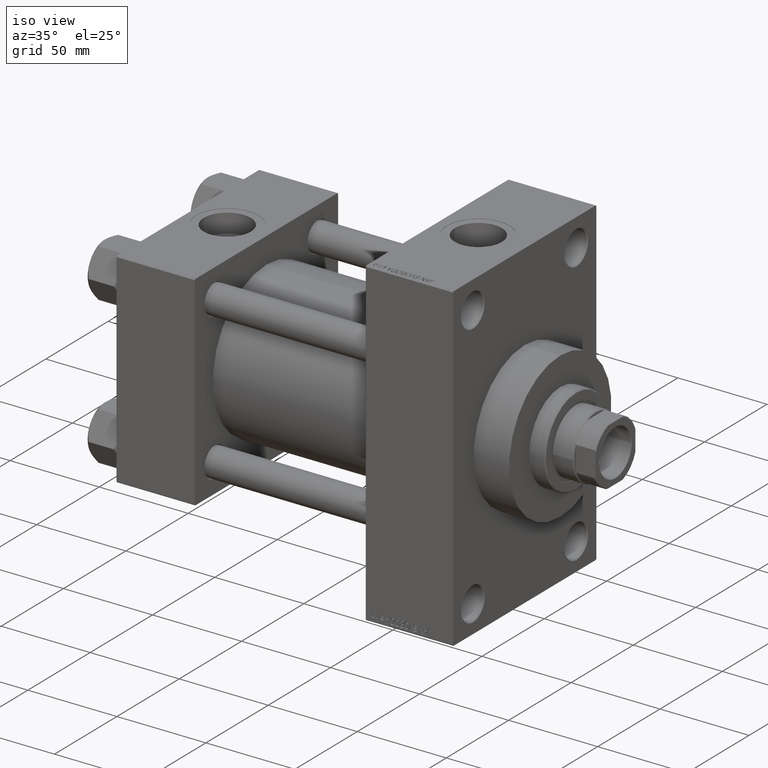
[diagram: clean part render]
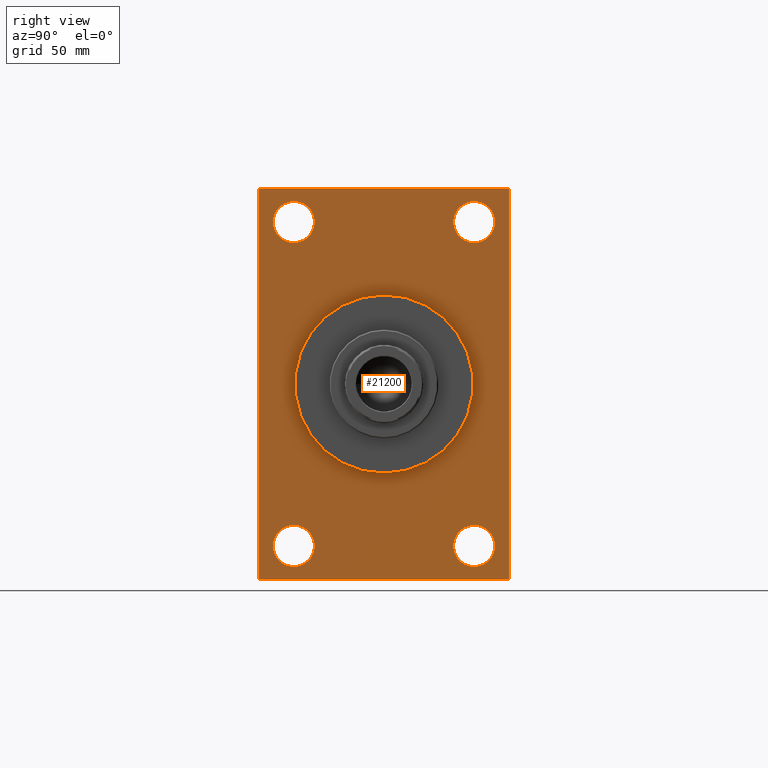
[diagram: tour spotlight — one face highlighted and labeled with its STEP entity id]
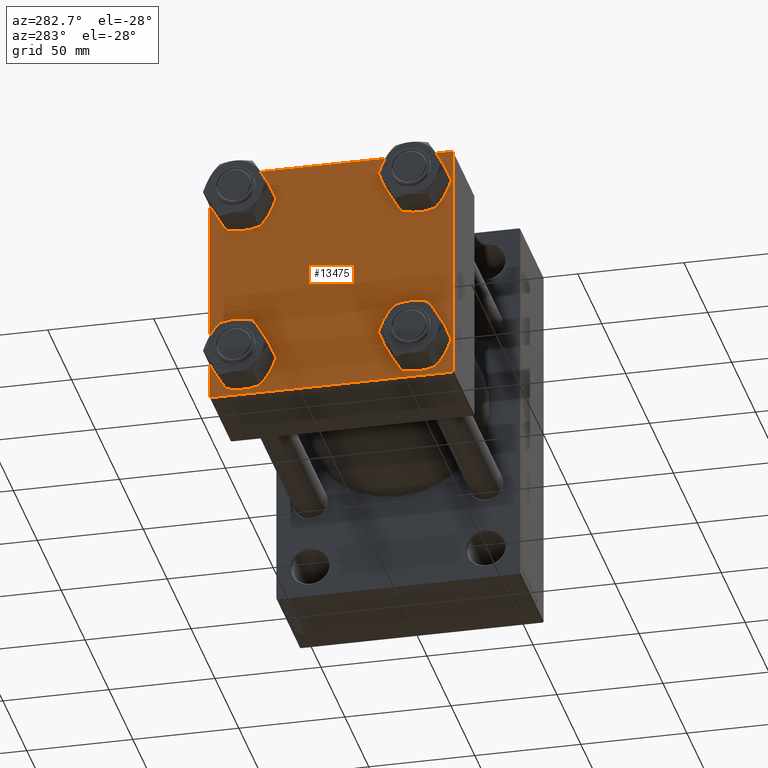
[diagram: tour spotlight — one face highlighted and labeled with its STEP entity id]
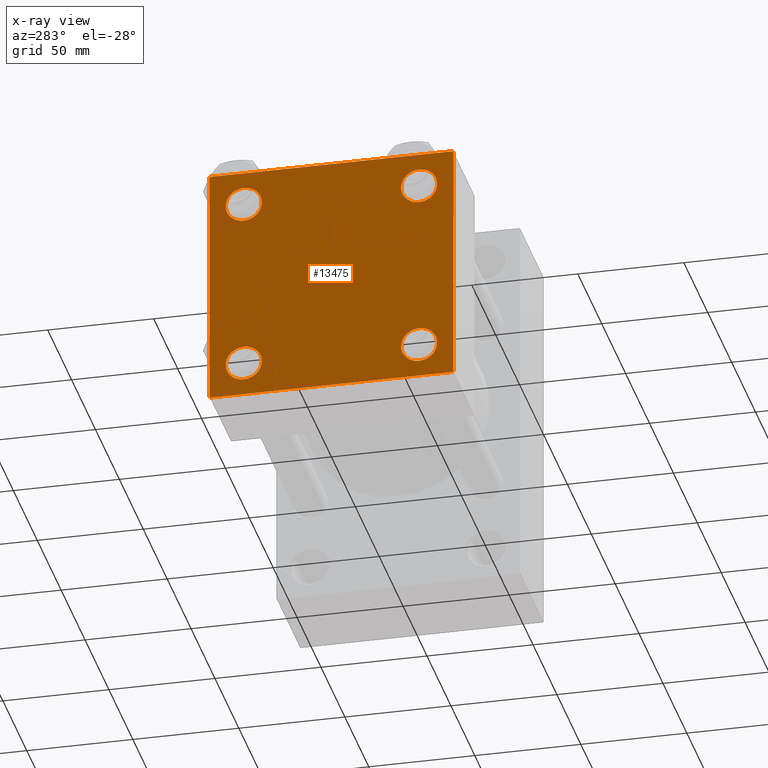
[diagram: x-ray of the same camera — body ghosted, this tour face saturated]
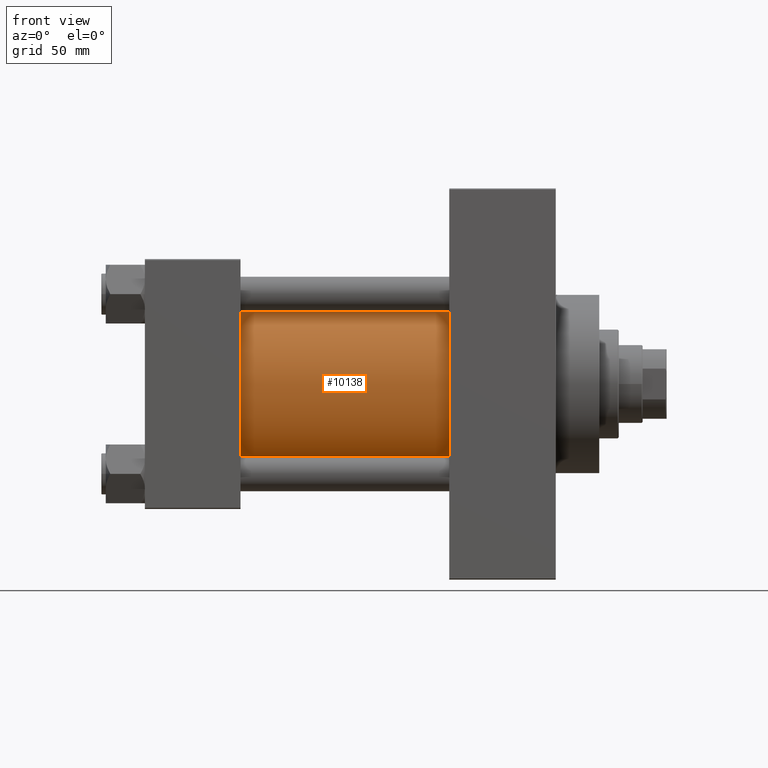
[diagram: tour spotlight — one face highlighted and labeled with its STEP entity id]
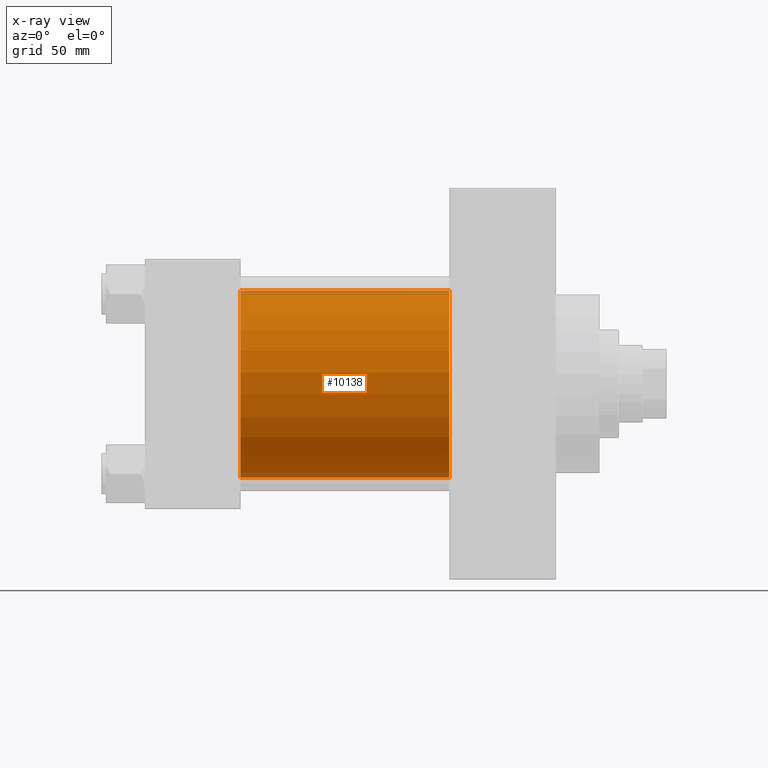
[diagram: x-ray of the same camera — body ghosted, this tour face saturated]
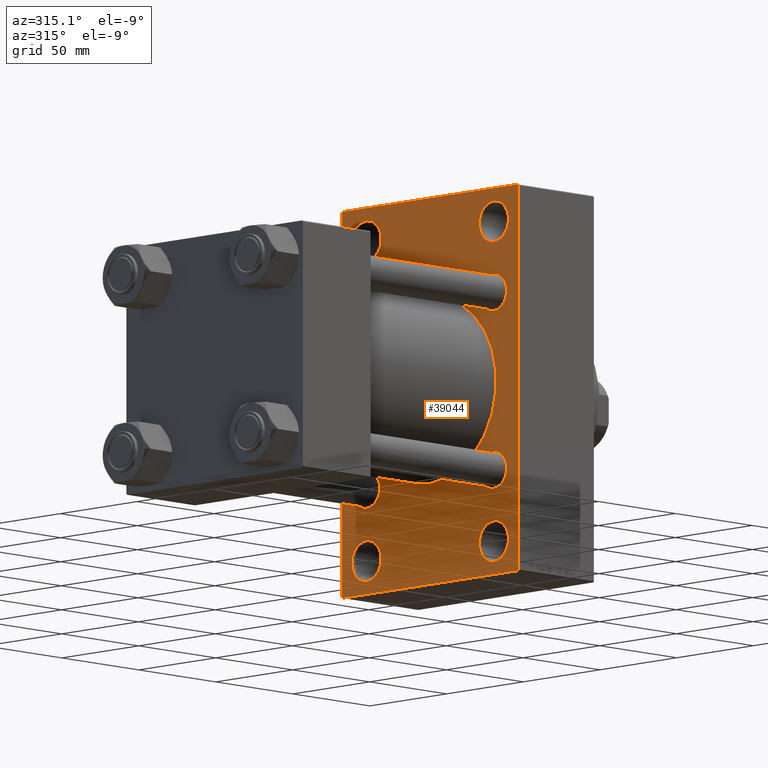
[diagram: tour spotlight — one face highlighted and labeled with its STEP entity id]
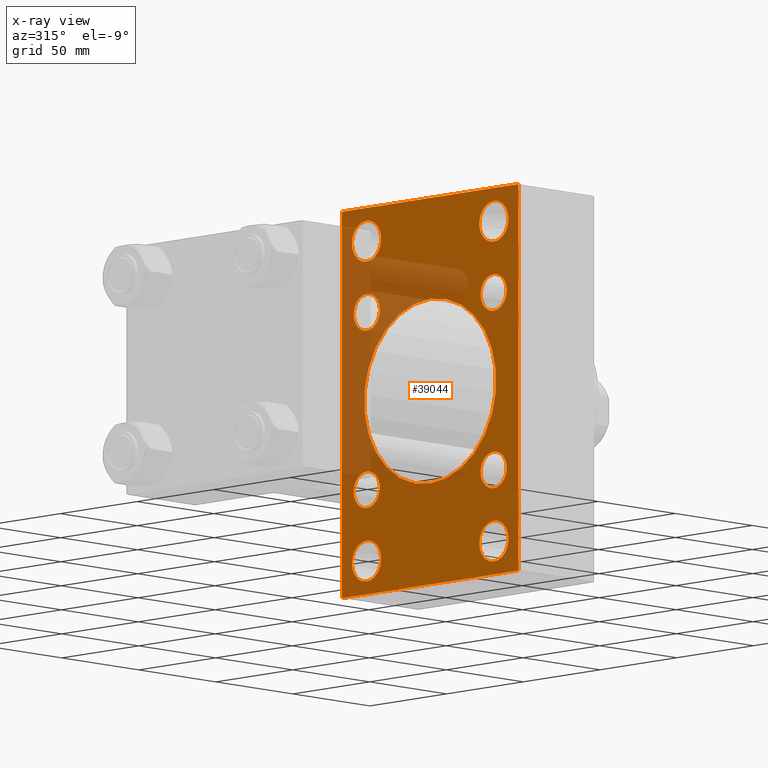
[diagram: x-ray of the same camera — body ghosted, this tour face saturated]
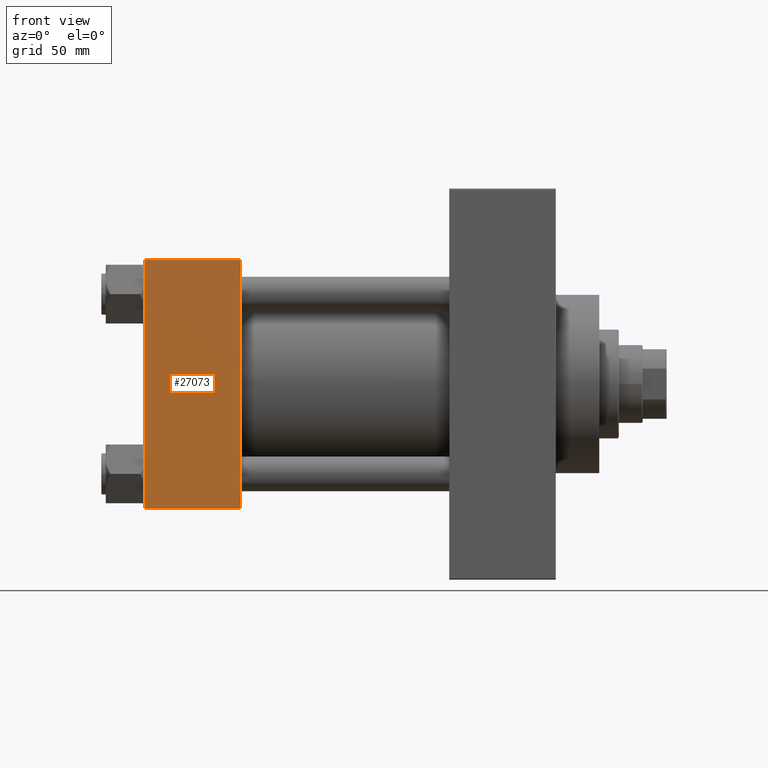
[diagram: tour spotlight — one face highlighted and labeled with its STEP entity id]
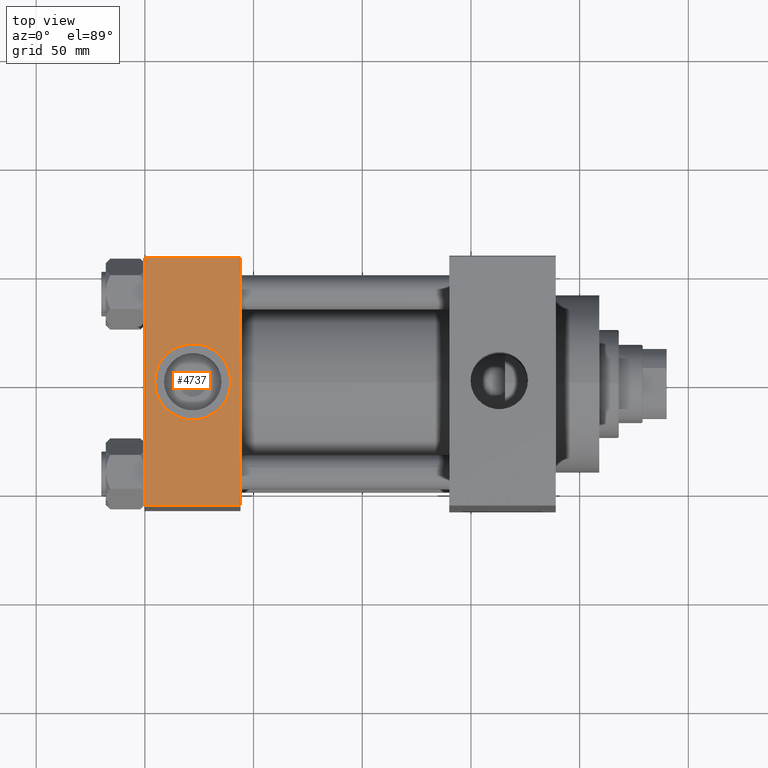
[diagram: tour spotlight — one face highlighted and labeled with its STEP entity id]
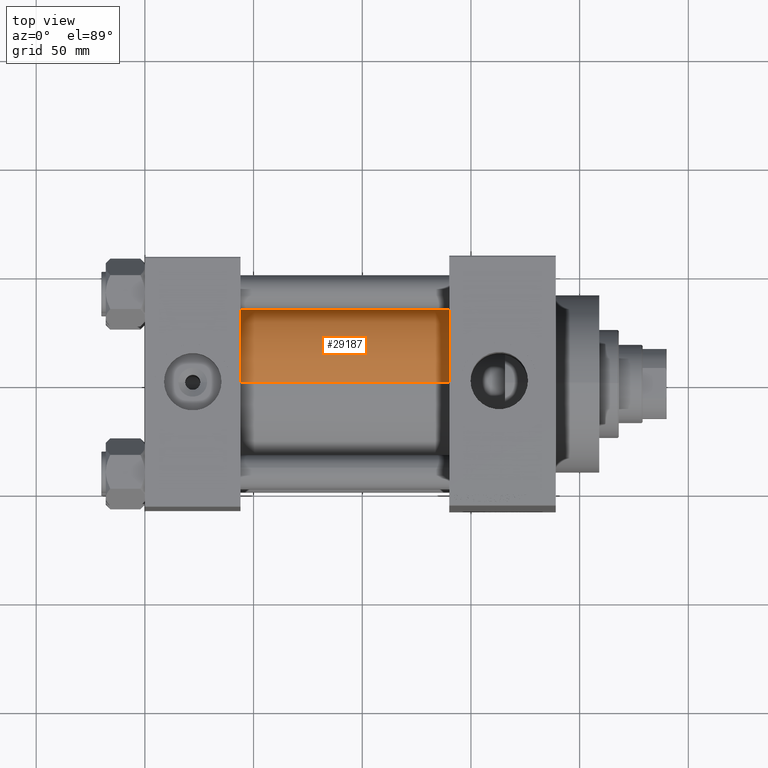
[diagram: tour spotlight — one face highlighted and labeled with its STEP entity id]
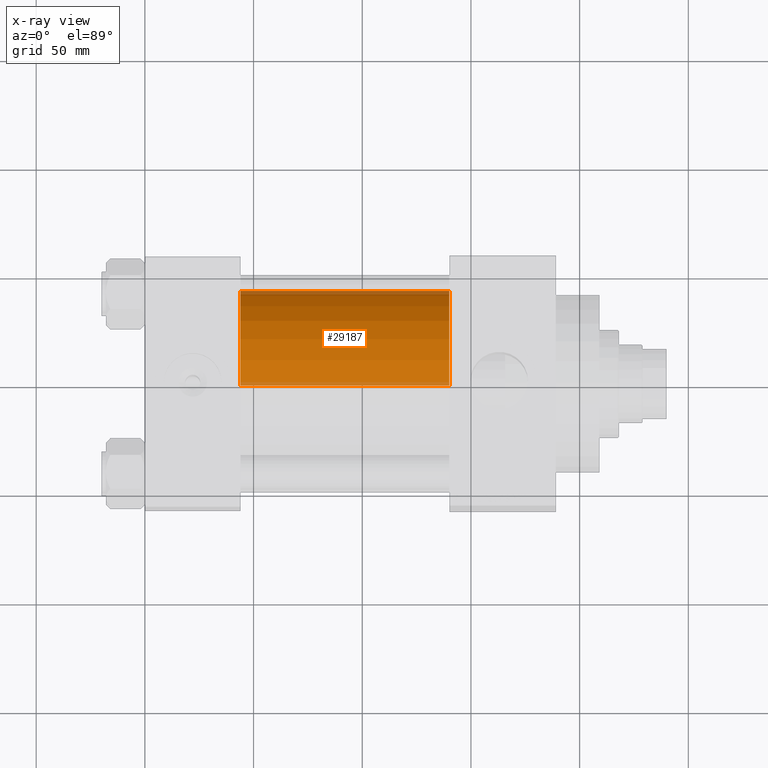
[diagram: x-ray of the same camera — body ghosted, this tour face saturated]
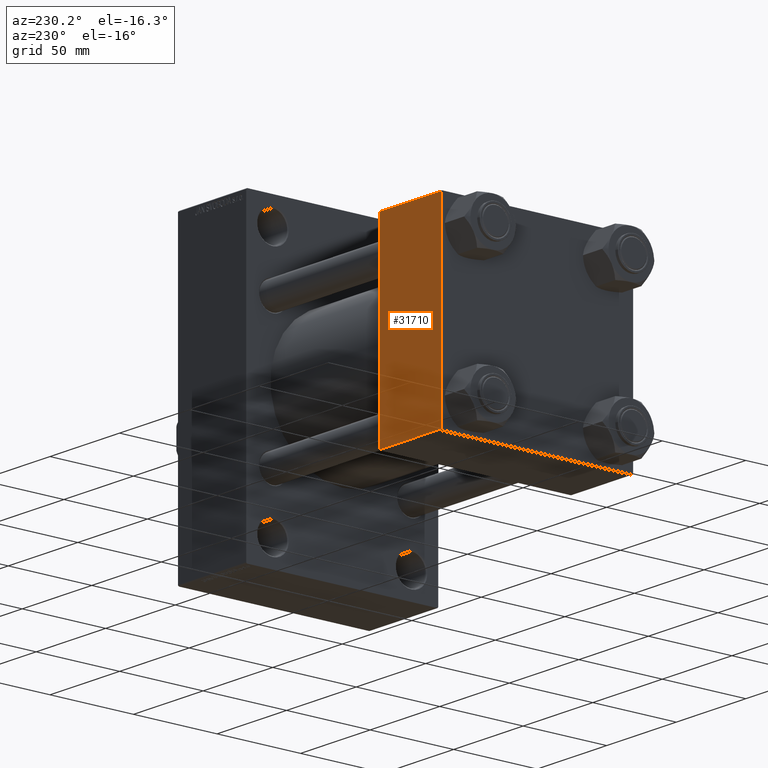
[diagram: tour spotlight — one face highlighted and labeled with its STEP entity id]
A machine part: a face-by-face anatomy tour. The part has 1151 B-rep faces; the first image is the clean iso view, then the 8 largest visible faces are spotlighted one at a time (largest first), each with its STEP entity span.

Face 1 — right view, entity #21200. In plain terms, the highlighted planar face has unit normal (-1, 0, 0).
Definition (entity closure, byte-faithful):
#497 = EDGE_LOOP ( 'NONE', ( #22468, #45682 ) ) ;
#503 = ORIENTED_EDGE ( 'NONE', *, *, #2161, .T. ) ;
#728 = ORIENTED_EDGE ( 'NONE', *, *, #38609, .T. ) ;
#951 = LINE ( 'NONE', #30332, #2661 ) ;
#1106 = DIRECTION ( 'NONE',  ( 0.000000000000000000, 0.000000000000000000, 1.000000000000000000 ) ) ;
#1230 = VERTEX_POINT ( 'NONE', #40282 ) ;
#1280 = CIRCLE ( 'NONE', #8195, 9.500000000000063949 ) ;
#2161 = EDGE_CURVE ( 'NONE', #16364, #9613, #19963, .T. ) ;
#2503 = CARTESIAN_POINT ( 'NONE',  ( 189.0000000000000000, -41.49999999999999289, 84.00000000000007105 ) ) ;
#2661 = VECTOR ( 'NONE', #20912, 1000.000000000000000 ) ;
#2687 = FACE_BOUND ( 'NONE', #497, .T. ) ;
#4016 = LINE ( 'NONE', #41981, #27284 ) ;
#5037 = DIRECTION ( 'NONE',  ( 0.000000000000000000, 0.000000000000000000, 1.000000000000000000 ) ) ;
#5393 = CARTESIAN_POINT ( 'NONE',  ( 189.0000000000000000, 41.50000000000000711, -84.00000000000005684 ) ) ;
#5516 = DIRECTION ( 'NONE',  ( 0.000000000000000000, 0.000000000000000000, 1.000000000000000000 ) ) ;
#5613 = DIRECTION ( 'NONE',  ( 0.000000000000000000, 0.000000000000000000, -1.000000000000000000 ) ) ;
#5894 = VERTEX_POINT ( 'NONE', #18555 ) ;
#6039 = CARTESIAN_POINT ( 'NONE',  ( 189.0000000000000000, 0.000000000000000000, 41.00000000000000000 ) ) ;
#6789 = VERTEX_POINT ( 'NONE', #21052 ) ;
#7127 = LINE ( 'NONE', #21814, #25972 ) ;
#7476 = VECTOR ( 'NONE', #34214, 1000.000000000000000 ) ;
#8195 = AXIS2_PLACEMENT_3D ( 'NONE', #32613, #17916, #47333 ) ;
#8558 = AXIS2_PLACEMENT_3D ( 'NONE', #37025, #19656, #30739 ) ;
#8659 = CARTESIAN_POINT ( 'NONE',  ( 189.0000000000000000, 41.50000000000000711, -74.50000000000000000 ) ) ;
#8768 = CARTESIAN_POINT ( 'NONE',  ( 189.0000000000000000, 41.50000000000000711, 84.00000000000007105 ) ) ;
#9066 = AXIS2_PLACEMENT_3D ( 'NONE', #19038, #36869, #22890 ) ;
#9136 = DIRECTION ( 'NONE',  ( -1.000000000000000000, 0.000000000000000000, -0.000000000000000000 ) ) ;
#9217 = AXIS2_PLACEMENT_3D ( 'NONE', #38470, #42799, #20172 ) ;
#9299 = EDGE_LOOP ( 'NONE', ( #42447, #9854 ) ) ;
#9323 = ORIENTED_EDGE ( 'NONE', *, *, #37699, .F. ) ;
#9464 = EDGE_CURVE ( 'NONE', #11187, #44751, #43014, .T. ) ;
#9613 = VERTEX_POINT ( 'NONE', #27958 ) ;
#9772 = DIRECTION ( 'NONE',  ( 0.000000000000000000, -0.7071067811865474617, 0.7071067811865474617 ) ) ;
#9854 = ORIENTED_EDGE ( 'NONE', *, *, #15720, .F. ) ;
#9879 = DIRECTION ( 'NONE',  ( 0.000000000000000000, 0.000000000000000000, -1.000000000000000000 ) ) ;
#10970 = CIRCLE ( 'NONE', #13261, 9.500000000000063949 ) ;
#11187 = VERTEX_POINT ( 'NONE', #36334 ) ;
#11368 = EDGE_CURVE ( 'NONE', #33128, #36115, #28425, .T. ) ;
#11466 = CARTESIAN_POINT ( 'NONE',  ( 189.0000000000000000, -41.49999999999999289, -65.00000000000000000 ) ) ;
#12786 = ORIENTED_EDGE ( 'NONE', *, *, #29103, .T. ) ;
#13261 = AXIS2_PLACEMENT_3D ( 'NONE', #8659, #9136, #5037 ) ;
#13307 = CARTESIAN_POINT ( 'NONE',  ( 189.0000000000000000, 0.000000000000000000, 0.000000000000000000 ) ) ;
#13493 = CARTESIAN_POINT ( 'NONE',  ( 189.0000000000000000, 57.49999999999997868, -89.50000000000001421 ) ) ;
#13615 = LINE ( 'NONE', #28306, #44275 ) ;
#13657 = CIRCLE ( 'NONE', #39038, 9.499999999999980460 ) ;
#13751 = CARTESIAN_POINT ( 'NONE',  ( 189.0000000000000000, -41.49999999999999289, -74.49999999999998579 ) ) ;
#14004 = AXIS2_PLACEMENT_3D ( 'NONE', #20438, #20208, #5516 ) ;
#14238 = FACE_OUTER_BOUND ( 'NONE', #44657, .T. ) ;
#14624 = VERTEX_POINT ( 'NONE', #28795 ) ;
#15064 = DIRECTION ( 'NONE',  ( 0.000000000000000000, -1.000000000000000000, -1.206764157201257045E-16 ) ) ;
#15720 = EDGE_CURVE ( 'NONE', #17622, #23141, #33090, .T. ) ;
#16364 = VERTEX_POINT ( 'NONE', #40865 ) ;
#16863 = CARTESIAN_POINT ( 'NONE',  ( 189.0000000000000000, 0.000000000000000000, 0.000000000000000000 ) ) ;
#17104 = CIRCLE ( 'NONE', #14004, 9.500000000000063949 ) ;
#17106 = LINE ( 'NONE', #13493, #34181 ) ;
#17330 = EDGE_CURVE ( 'NONE', #23141, #17622, #29323, .T. ) ;
#17622 = VERTEX_POINT ( 'NONE', #18659 ) ;
#17853 = FACE_BOUND ( 'NONE', #21063, .T. ) ;
#17916 = DIRECTION ( 'NONE',  ( -1.000000000000000000, 0.000000000000000000, -0.000000000000000000 ) ) ;
#18555 = CARTESIAN_POINT ( 'NONE',  ( 189.0000000000000000, -57.50000000000002132, -89.49999999999997158 ) ) ;
#18659 = CARTESIAN_POINT ( 'NONE',  ( 189.0000000000000000, 5.021051876504148963E-15, -41.00000000000000000 ) ) ;
#19038 = CARTESIAN_POINT ( 'NONE',  ( 189.0000000000000000, -41.49999999999999289, 74.50000000000001421 ) ) ;
#19141 = ORIENTED_EDGE ( 'NONE', *, *, #20446, .T. ) ;
#19305 = CARTESIAN_POINT ( 'NONE',  ( 189.0000000000000000, -57.00000000000002132, -90.00000000000001421 ) ) ;
#19412 = CARTESIAN_POINT ( 'NONE',  ( 189.0000000000000000, -41.49999999999999289, 74.50000000000001421 ) ) ;
#19439 = VERTEX_POINT ( 'NONE', #19305 ) ;
#19656 = DIRECTION ( 'NONE',  ( 1.000000000000000000, 0.000000000000000000, 0.000000000000000000 ) ) ;
#19963 = LINE ( 'NONE', #42831, #28909 ) ;
#20172 = DIRECTION ( 'NONE',  ( 0.000000000000000000, 0.000000000000000000, 1.000000000000000000 ) ) ;
#20208 = DIRECTION ( 'NONE',  ( -1.000000000000000000, 0.000000000000000000, -0.000000000000000000 ) ) ;
#20402 = CIRCLE ( 'NONE', #21945, 9.500000000000063949 ) ;
#20437 = EDGE_CURVE ( 'NONE', #35665, #44756, #17104, .T. ) ;
#20438 = CARTESIAN_POINT ( 'NONE',  ( 189.0000000000000000, 41.50000000000000711, 74.50000000000001421 ) ) ;
#20446 = EDGE_CURVE ( 'NONE', #44751, #11187, #10970, .T. ) ;
#20912 = DIRECTION ( 'NONE',  ( 0.000000000000000000, 0.7071067811865573427, -0.7071067811865378028 ) ) ;
#20972 = ORIENTED_EDGE ( 'NONE', *, *, #11368, .T. ) ;
#21052 = CARTESIAN_POINT ( 'NONE',  ( 189.0000000000000000, 57.49999999999997868, -89.49999999999995737 ) ) ;
#21063 = EDGE_LOOP ( 'NONE', ( #19141, #43413 ) ) ;
#21200 = ADVANCED_FACE ( 'NONE', ( #38831, #28697, #17853, #2687, #47032, #14238 ), #32309, .F. ) ;
#21814 = CARTESIAN_POINT ( 'NONE',  ( 189.0000000000000000, 57.49999999999997868, -90.00000000000000000 ) ) ;
#21945 = AXIS2_PLACEMENT_3D ( 'NONE', #19412, #34102, #1106 ) ;
#21954 = EDGE_CURVE ( 'NONE', #36757, #16364, #24393, .T. ) ;
#22468 = ORIENTED_EDGE ( 'NONE', *, *, #20437, .T. ) ;
#22890 = DIRECTION ( 'NONE',  ( 0.000000000000000000, 0.000000000000000000, 1.000000000000000000 ) ) ;
#23141 = VERTEX_POINT ( 'NONE', #6039 ) ;
#24393 = LINE ( 'NONE', #43644, #30212 ) ;
#24692 = ORIENTED_EDGE ( 'NONE', *, *, #38933, .F. ) ;
#24881 = CARTESIAN_POINT ( 'NONE',  ( 189.0000000000000000, 41.50000000000000711, -74.50000000000000000 ) ) ;
#24915 = CARTESIAN_POINT ( 'NONE',  ( 189.0000000000000000, -41.49999999999999289, -83.99999999999995737 ) ) ;
#25111 = DIRECTION ( 'NONE',  ( 0.000000000000000000, 0.000000000000000000, 1.000000000000000000 ) ) ;
#25578 = ORIENTED_EDGE ( 'NONE', *, *, #25849, .T. ) ;
#25849 = EDGE_CURVE ( 'NONE', #9613, #5894, #4016, .T. ) ;
#25972 = VECTOR ( 'NONE', #15064, 1000.000000000000000 ) ;
#26258 = EDGE_CURVE ( 'NONE', #42798, #6789, #17106, .T. ) ;
#27284 = VECTOR ( 'NONE', #5613, 1000.000000000000000 ) ;
#27958 = CARTESIAN_POINT ( 'NONE',  ( 189.0000000000000000, -57.50000000000002132, 89.50000000000002842 ) ) ;
#28306 = CARTESIAN_POINT ( 'NONE',  ( 189.0000000000000000, 57.00000000000002842, 89.99999999999998579 ) ) ;
#28425 = CIRCLE ( 'NONE', #9217, 9.499999999999980460 ) ;
#28697 = FACE_BOUND ( 'NONE', #46602, .T. ) ;
#28795 = CARTESIAN_POINT ( 'NONE',  ( 189.0000000000000000, -41.49999999999999289, 64.99999999999994316 ) ) ;
#28796 = ORIENTED_EDGE ( 'NONE', *, *, #30500, .T. ) ;
#28909 = VECTOR ( 'NONE', #35365, 1000.000000000000000 ) ;
#29103 = EDGE_CURVE ( 'NONE', #5894, #19439, #951, .T. ) ;
#29323 = CIRCLE ( 'NONE', #8558, 41.00000000000000000 ) ;
#29582 = CARTESIAN_POINT ( 'NONE',  ( 189.0000000000000000, 56.99999999999995026, -90.00000000000000000 ) ) ;
#29811 = DIRECTION ( 'NONE',  ( 0.000000000000000000, 0.000000000000000000, 1.000000000000000000 ) ) ;
#29819 = CIRCLE ( 'NONE', #9066, 9.500000000000063949 ) ;
#29901 = LINE ( 'NONE', #41688, #7476 ) ;
#30212 = VECTOR ( 'NONE', #35690, 1000.000000000000000 ) ;
#30332 = CARTESIAN_POINT ( 'NONE',  ( 189.0000000000000000, -57.00000000000002132, -90.00000000000001421 ) ) ;
#30500 = EDGE_CURVE ( 'NONE', #39124, #14624, #20402, .T. ) ;
#30549 = EDGE_CURVE ( 'NONE', #1230, #36757, #13615, .T. ) ;
#30739 = DIRECTION ( 'NONE',  ( 0.000000000000000000, 0.000000000000000000, -1.000000000000000000 ) ) ;
#31317 = DIRECTION ( 'NONE',  ( -0.000000000000000000, 0.7071067811865771047, 0.7071067811865180408 ) ) ;
#31818 = DIRECTION ( 'NONE',  ( -1.000000000000000000, 0.000000000000000000, -0.000000000000000000 ) ) ;
#32309 = PLANE ( 'NONE',  #34059 ) ;
#32613 = CARTESIAN_POINT ( 'NONE',  ( 189.0000000000000000, 41.50000000000000711, 74.50000000000001421 ) ) ;
#33025 = AXIS2_PLACEMENT_3D ( 'NONE', #24881, #47531, #25111 ) ;
#33090 = CIRCLE ( 'NONE', #37747, 41.00000000000000000 ) ;
#33128 = VERTEX_POINT ( 'NONE', #24915 ) ;
#33745 = EDGE_LOOP ( 'NONE', ( #38297, #28796 ) ) ;
#34059 = AXIS2_PLACEMENT_3D ( 'NONE', #13307, #35218, #39535 ) ;
#34102 = DIRECTION ( 'NONE',  ( -1.000000000000000000, 0.000000000000000000, -0.000000000000000000 ) ) ;
#34181 = VECTOR ( 'NONE', #31317, 999.9999999999998863 ) ;
#34214 = DIRECTION ( 'NONE',  ( 0.000000000000000000, 3.854941057726238467E-17, -1.000000000000000000 ) ) ;
#35218 = DIRECTION ( 'NONE',  ( -1.000000000000000000, 0.000000000000000000, -0.000000000000000000 ) ) ;
#35365 = DIRECTION ( 'NONE',  ( -0.000000000000000000, -0.7071067811865524577, -0.7071067811865426878 ) ) ;
#35665 = VERTEX_POINT ( 'NONE', #46965 ) ;
#35690 = DIRECTION ( 'NONE',  ( 0.000000000000000000, -1.000000000000000000, -1.206764157201257291E-16 ) ) ;
#36115 = VERTEX_POINT ( 'NONE', #11466 ) ;
#36334 = CARTESIAN_POINT ( 'NONE',  ( 189.0000000000000000, 41.50000000000000711, -64.99999999999992895 ) ) ;
#36757 = VERTEX_POINT ( 'NONE', #37831 ) ;
#36869 = DIRECTION ( 'NONE',  ( -1.000000000000000000, 0.000000000000000000, -0.000000000000000000 ) ) ;
#37025 = CARTESIAN_POINT ( 'NONE',  ( 189.0000000000000000, 0.000000000000000000, 0.000000000000000000 ) ) ;
#37295 = EDGE_CURVE ( 'NONE', #44756, #35665, #1280, .T. ) ;
#37507 = ORIENTED_EDGE ( 'NONE', *, *, #26258, .T. ) ;
#37699 = EDGE_CURVE ( 'NONE', #1230, #6789, #29901, .T. ) ;
#37747 = AXIS2_PLACEMENT_3D ( 'NONE', #16863, #45786, #9879 ) ;
#37831 = CARTESIAN_POINT ( 'NONE',  ( 189.0000000000000000, 57.00000000000002842, 89.99999999999998579 ) ) ;
#38297 = ORIENTED_EDGE ( 'NONE', *, *, #40527, .T. ) ;
#38470 = CARTESIAN_POINT ( 'NONE',  ( 189.0000000000000000, -41.49999999999999289, -74.49999999999998579 ) ) ;
#38609 = EDGE_CURVE ( 'NONE', #36115, #33128, #13657, .T. ) ;
#38831 = FACE_BOUND ( 'NONE', #33745, .T. ) ;
#38933 = EDGE_CURVE ( 'NONE', #42798, #19439, #7127, .T. ) ;
#39038 = AXIS2_PLACEMENT_3D ( 'NONE', #13751, #31818, #29811 ) ;
#39124 = VERTEX_POINT ( 'NONE', #2503 ) ;
#39535 = DIRECTION ( 'NONE',  ( -0.000000000000000000, 0.000000000000000000, 1.000000000000000000 ) ) ;
#40282 = CARTESIAN_POINT ( 'NONE',  ( 189.0000000000000000, 57.49999999999997158, 89.50000000000004263 ) ) ;
#40527 = EDGE_CURVE ( 'NONE', #14624, #39124, #29819, .T. ) ;
#40865 = CARTESIAN_POINT ( 'NONE',  ( 189.0000000000000000, -57.00000000000007105, 89.99999999999997158 ) ) ;
#41688 = CARTESIAN_POINT ( 'NONE',  ( 189.0000000000000000, 57.49999999999997158, 89.99999999999998579 ) ) ;
#41981 = CARTESIAN_POINT ( 'NONE',  ( 189.0000000000000000, -57.50000000000002132, 89.99999999999997158 ) ) ;
#42447 = ORIENTED_EDGE ( 'NONE', *, *, #17330, .F. ) ;
#42798 = VERTEX_POINT ( 'NONE', #29582 ) ;
#42799 = DIRECTION ( 'NONE',  ( -1.000000000000000000, 0.000000000000000000, -0.000000000000000000 ) ) ;
#42831 = CARTESIAN_POINT ( 'NONE',  ( 189.0000000000000000, -57.50000000000002132, 89.50000000000002842 ) ) ;
#43014 = CIRCLE ( 'NONE', #33025, 9.500000000000063949 ) ;
#43413 = ORIENTED_EDGE ( 'NONE', *, *, #9464, .T. ) ;
#43644 = CARTESIAN_POINT ( 'NONE',  ( 189.0000000000000000, 57.49999999999997158, 89.99999999999998579 ) ) ;
#44275 = VECTOR ( 'NONE', #9772, 1000.000000000000114 ) ;
#44657 = EDGE_LOOP ( 'NONE', ( #25578, #12786, #24692, #37507, #9323, #47365, #47248, #503 ) ) ;
#44751 = VERTEX_POINT ( 'NONE', #5393 ) ;
#44756 = VERTEX_POINT ( 'NONE', #8768 ) ;
#45682 = ORIENTED_EDGE ( 'NONE', *, *, #37295, .T. ) ;
#45786 = DIRECTION ( 'NONE',  ( 1.000000000000000000, 0.000000000000000000, 0.000000000000000000 ) ) ;
#46602 = EDGE_LOOP ( 'NONE', ( #20972, #728 ) ) ;
#46965 = CARTESIAN_POINT ( 'NONE',  ( 189.0000000000000000, 41.50000000000000711, 64.99999999999994316 ) ) ;
#47032 = FACE_BOUND ( 'NONE', #9299, .T. ) ;
#47248 = ORIENTED_EDGE ( 'NONE', *, *, #21954, .T. ) ;
#47333 = DIRECTION ( 'NONE',  ( 0.000000000000000000, 0.000000000000000000, 1.000000000000000000 ) ) ;
#47365 = ORIENTED_EDGE ( 'NONE', *, *, #30549, .T. ) ;
#47531 = DIRECTION ( 'NONE',  ( -1.000000000000000000, 0.000000000000000000, -0.000000000000000000 ) ) ;

Face 2 — auxiliary view, entity #13475. An x-ray twin of the same camera follows (body ghosted, this face saturated) — the face is partly hidden behind the body. In plain terms, the highlighted planar face has unit normal (-1, 0, 0).
Definition (entity closure, byte-faithful):
#267 = EDGE_CURVE ( 'NONE', #28587, #30725, #6816, .T. ) ;
#401 = FACE_BOUND ( 'NONE', #10632, .T. ) ;
#434 = EDGE_CURVE ( 'NONE', #25581, #38224, #27957, .T. ) ;
#944 = LINE ( 'NONE', #15637, #20073 ) ;
#1083 = ORIENTED_EDGE ( 'NONE', *, *, #1842, .T. ) ;
#1643 = CARTESIAN_POINT ( 'NONE',  ( 0.000000000000000000, -57.50000000000000711, 57.00000000000000711 ) ) ;
#1842 = EDGE_CURVE ( 'NONE', #33084, #41616, #33616, .T. ) ;
#2185 = EDGE_CURVE ( 'NONE', #32910, #42695, #21858, .T. ) ;
#2540 = DIRECTION ( 'NONE',  ( 0.000000000000000000, -1.000000000000000000, -1.206764157201257045E-16 ) ) ;
#2827 = EDGE_LOOP ( 'NONE', ( #44016, #46779 ) ) ;
#2953 = DIRECTION ( 'NONE',  ( 1.000000000000000000, -0.000000000000000000, 0.000000000000000000 ) ) ;
#3654 = VECTOR ( 'NONE', #17193, 1000.000000000000000 ) ;
#3915 = AXIS2_PLACEMENT_3D ( 'NONE', #40394, #11023, #44496 ) ;
#3978 = EDGE_CURVE ( 'NONE', #4827, #22084, #40489, .T. ) ;
#4189 = EDGE_CURVE ( 'NONE', #47508, #46127, #5287, .T. ) ;
#4265 = CARTESIAN_POINT ( 'NONE',  ( 0.000000000000000000, -41.34999999999998721, 41.35000000000000853 ) ) ;
#4282 = LINE ( 'NONE', #29576, #44380 ) ;
#4588 = EDGE_CURVE ( 'NONE', #14021, #8915, #44396, .T. ) ;
#4645 = ORIENTED_EDGE ( 'NONE', *, *, #39052, .F. ) ;
#4827 = VERTEX_POINT ( 'NONE', #45291 ) ;
#5287 = LINE ( 'NONE', #26082, #25165 ) ;
#5356 = ORIENTED_EDGE ( 'NONE', *, *, #4588, .T. ) ;
#6246 = CARTESIAN_POINT ( 'NONE',  ( 0.000000000000000000, 57.49999999999999289, 57.00000000000003553 ) ) ;
#6604 = CARTESIAN_POINT ( 'NONE',  ( 0.000000000000000000, 41.34999999999999432, 32.85000000000000853 ) ) ;
#6816 = CIRCLE ( 'NONE', #12969, 8.499999999999992895 ) ;
#7185 = DIRECTION ( 'NONE',  ( 0.000000000000000000, 0.000000000000000000, -1.000000000000000000 ) ) ;
#7398 = FACE_BOUND ( 'NONE', #44638, .T. ) ;
#8915 = VERTEX_POINT ( 'NONE', #26891 ) ;
#9497 = DIRECTION ( 'NONE',  ( 0.000000000000000000, 0.000000000000000000, 1.000000000000000000 ) ) ;
#9499 = LINE ( 'NONE', #31878, #3654 ) ;
#9508 = EDGE_CURVE ( 'NONE', #8915, #14021, #23027, .T. ) ;
#10194 = DIRECTION ( 'NONE',  ( 0.000000000000000000, 0.000000000000000000, 1.000000000000000000 ) ) ;
#10401 = CARTESIAN_POINT ( 'NONE',  ( 0.000000000000000000, -57.50000000000000711, -57.00000000000000711 ) ) ;
#10430 = CARTESIAN_POINT ( 'NONE',  ( 0.000000000000000000, -41.34999999999998721, -49.85000000000000853 ) ) ;
#10632 = EDGE_LOOP ( 'NONE', ( #5356, #21000 ) ) ;
#11023 = DIRECTION ( 'NONE',  ( 1.000000000000000000, -0.000000000000000000, 0.000000000000000000 ) ) ;
#11237 = EDGE_LOOP ( 'NONE', ( #23687, #20059 ) ) ;
#11278 = VECTOR ( 'NONE', #17230, 1000.000000000000000 ) ;
#11492 = CARTESIAN_POINT ( 'NONE',  ( 0.000000000000000000, 0.000000000000000000, 0.000000000000000000 ) ) ;
#12269 = CARTESIAN_POINT ( 'NONE',  ( 0.000000000000000000, 41.34999999999999432, -32.85000000000000853 ) ) ;
#12329 = DIRECTION ( 'NONE',  ( 0.000000000000000000, 0.000000000000000000, 1.000000000000000000 ) ) ;
#12969 = AXIS2_PLACEMENT_3D ( 'NONE', #26065, #22924, #18349 ) ;
#13475 = ADVANCED_FACE ( 'NONE', ( #36780, #44970, #401, #7398, #22800 ), #29793, .T. ) ;
#13498 = EDGE_CURVE ( 'NONE', #30725, #28587, #38497, .T. ) ;
#13602 = EDGE_CURVE ( 'NONE', #41616, #33084, #31582, .T. ) ;
#13754 = EDGE_CURVE ( 'NONE', #46127, #25611, #29441, .T. ) ;
#14021 = VERTEX_POINT ( 'NONE', #12269 ) ;
#14119 = EDGE_CURVE ( 'NONE', #25611, #36691, #944, .T. ) ;
#14390 = CARTESIAN_POINT ( 'NONE',  ( 0.000000000000000000, 57.24999999999922551, 57.25000000000081712 ) ) ;
#14593 = AXIS2_PLACEMENT_3D ( 'NONE', #4265, #47413, #22097 ) ;
#14630 = DIRECTION ( 'NONE',  ( -0.000000000000000000, 0.000000000000000000, 1.000000000000000000 ) ) ;
#14776 = ORIENTED_EDGE ( 'NONE', *, *, #13754, .T. ) ;
#15637 = CARTESIAN_POINT ( 'NONE',  ( 0.000000000000000000, -57.25000000000000711, -57.25000000000000711 ) ) ;
#16589 = VECTOR ( 'NONE', #40403, 1000.000000000000114 ) ;
#16625 = ORIENTED_EDGE ( 'NONE', *, *, #28339, .F. ) ;
#17193 = DIRECTION ( 'NONE',  ( 0.000000000000000000, -1.000000000000000000, -1.206764157201257045E-16 ) ) ;
#17230 = DIRECTION ( 'NONE',  ( 0.000000000000000000, 0.000000000000000000, -1.000000000000000000 ) ) ;
#18201 = AXIS2_PLACEMENT_3D ( 'NONE', #24135, #31585, #35440 ) ;
#18349 = DIRECTION ( 'NONE',  ( 0.000000000000000000, 0.000000000000000000, 1.000000000000000000 ) ) ;
#18963 = AXIS2_PLACEMENT_3D ( 'NONE', #46120, #31643, #9497 ) ;
#19008 = AXIS2_PLACEMENT_3D ( 'NONE', #29917, #23168, #12329 ) ;
#19161 = CARTESIAN_POINT ( 'NONE',  ( 0.000000000000000000, 57.00000000000000711, 57.50000000000000711 ) ) ;
#19420 = DIRECTION ( 'NONE',  ( -1.000000000000000000, 0.000000000000000000, -0.000000000000000000 ) ) ;
#20059 = ORIENTED_EDGE ( 'NONE', *, *, #47282, .T. ) ;
#20073 = VECTOR ( 'NONE', #30325, 1000.000000000000114 ) ;
#21000 = ORIENTED_EDGE ( 'NONE', *, *, #9508, .T. ) ;
#21287 = ORIENTED_EDGE ( 'NONE', *, *, #13602, .T. ) ;
#21858 = LINE ( 'NONE', #14390, #16589 ) ;
#22084 = VERTEX_POINT ( 'NONE', #44605 ) ;
#22097 = DIRECTION ( 'NONE',  ( 0.000000000000000000, 0.000000000000000000, 1.000000000000000000 ) ) ;
#22800 = FACE_OUTER_BOUND ( 'NONE', #24207, .T. ) ;
#22924 = DIRECTION ( 'NONE',  ( 1.000000000000000000, -0.000000000000000000, 0.000000000000000000 ) ) ;
#22976 = CARTESIAN_POINT ( 'NONE',  ( 0.000000000000000000, -41.34999999999998721, -32.85000000000001563 ) ) ;
#23027 = CIRCLE ( 'NONE', #36850, 8.499999999999992895 ) ;
#23168 = DIRECTION ( 'NONE',  ( 1.000000000000000000, -0.000000000000000000, 0.000000000000000000 ) ) ;
#23357 = CARTESIAN_POINT ( 'NONE',  ( 0.000000000000000000, 41.34999999999999432, 49.85000000000000142 ) ) ;
#23687 = ORIENTED_EDGE ( 'NONE', *, *, #3978, .T. ) ;
#24135 = CARTESIAN_POINT ( 'NONE',  ( 0.000000000000000000, 41.34999999999999432, -41.35000000000000142 ) ) ;
#24207 = EDGE_LOOP ( 'NONE', ( #29002, #41950, #14776, #31008, #16625, #39895, #4645, #39746 ) ) ;
#24709 = CARTESIAN_POINT ( 'NONE',  ( 0.000000000000000000, 57.49999999999999289, -57.49999999999999289 ) ) ;
#25165 = VECTOR ( 'NONE', #40769, 1000.000000000000114 ) ;
#25581 = VERTEX_POINT ( 'NONE', #1643 ) ;
#25611 = VERTEX_POINT ( 'NONE', #34627 ) ;
#26065 = CARTESIAN_POINT ( 'NONE',  ( 0.000000000000000000, -41.34999999999998721, -41.35000000000000853 ) ) ;
#26082 = CARTESIAN_POINT ( 'NONE',  ( 0.000000000000000000, 57.25000000000081712, -57.24999999999922551 ) ) ;
#26374 = CARTESIAN_POINT ( 'NONE',  ( 0.000000000000000000, -57.00000000000003553, 57.49999999999999289 ) ) ;
#26464 = CARTESIAN_POINT ( 'NONE',  ( 0.000000000000000000, 57.00000000000002132, -57.49999999999999289 ) ) ;
#26891 = CARTESIAN_POINT ( 'NONE',  ( 0.000000000000000000, 41.34999999999999432, -49.85000000000000142 ) ) ;
#27027 = VECTOR ( 'NONE', #2540, 1000.000000000000000 ) ;
#27602 = DIRECTION ( 'NONE',  ( 1.000000000000000000, -0.000000000000000000, 0.000000000000000000 ) ) ;
#27744 = AXIS2_PLACEMENT_3D ( 'NONE', #11492, #19420, #14630 ) ;
#27957 = LINE ( 'NONE', #39273, #32179 ) ;
#28339 = EDGE_CURVE ( 'NONE', #25581, #36691, #35768, .T. ) ;
#28587 = VERTEX_POINT ( 'NONE', #10430 ) ;
#29002 = ORIENTED_EDGE ( 'NONE', *, *, #37787, .T. ) ;
#29027 = CARTESIAN_POINT ( 'NONE',  ( 0.000000000000000000, -57.50000000000000711, 57.49999999999999289 ) ) ;
#29441 = LINE ( 'NONE', #24709, #27027 ) ;
#29576 = CARTESIAN_POINT ( 'NONE',  ( 0.000000000000000000, 57.49999999999999289, 57.50000000000000711 ) ) ;
#29793 = PLANE ( 'NONE',  #27744 ) ;
#29917 = CARTESIAN_POINT ( 'NONE',  ( 0.000000000000000000, 41.34999999999999432, 41.35000000000000142 ) ) ;
#30325 = DIRECTION ( 'NONE',  ( 0.000000000000000000, -0.7071067811865474617, 0.7071067811865474617 ) ) ;
#30725 = VERTEX_POINT ( 'NONE', #22976 ) ;
#31008 = ORIENTED_EDGE ( 'NONE', *, *, #14119, .T. ) ;
#31582 = CIRCLE ( 'NONE', #36956, 8.499999999999992895 ) ;
#31585 = DIRECTION ( 'NONE',  ( 1.000000000000000000, -0.000000000000000000, 0.000000000000000000 ) ) ;
#31643 = DIRECTION ( 'NONE',  ( 1.000000000000000000, -0.000000000000000000, 0.000000000000000000 ) ) ;
#31878 = CARTESIAN_POINT ( 'NONE',  ( 0.000000000000000000, 57.49999999999999289, 57.50000000000000711 ) ) ;
#32092 = CARTESIAN_POINT ( 'NONE',  ( 0.000000000000000000, 41.34999999999999432, -41.35000000000000142 ) ) ;
#32179 = VECTOR ( 'NONE', #43364, 1000.000000000000114 ) ;
#32243 = CIRCLE ( 'NONE', #14593, 8.499999999999992895 ) ;
#32910 = VERTEX_POINT ( 'NONE', #19161 ) ;
#33084 = VERTEX_POINT ( 'NONE', #6604 ) ;
#33616 = CIRCLE ( 'NONE', #19008, 8.499999999999992895 ) ;
#34627 = CARTESIAN_POINT ( 'NONE',  ( 0.000000000000000000, -57.00000000000000711, -57.50000000000000711 ) ) ;
#34819 = DIRECTION ( 'NONE',  ( 0.000000000000000000, 0.000000000000000000, 1.000000000000000000 ) ) ;
#35440 = DIRECTION ( 'NONE',  ( 0.000000000000000000, 0.000000000000000000, 1.000000000000000000 ) ) ;
#35768 = LINE ( 'NONE', #29027, #11278 ) ;
#36691 = VERTEX_POINT ( 'NONE', #10401 ) ;
#36733 = CARTESIAN_POINT ( 'NONE',  ( 0.000000000000000000, 57.49999999999999289, -57.00000000000000711 ) ) ;
#36780 = FACE_BOUND ( 'NONE', #11237, .T. ) ;
#36850 = AXIS2_PLACEMENT_3D ( 'NONE', #32092, #2953, #10194 ) ;
#36956 = AXIS2_PLACEMENT_3D ( 'NONE', #42051, #27602, #34819 ) ;
#37787 = EDGE_CURVE ( 'NONE', #42695, #47508, #4282, .T. ) ;
#38224 = VERTEX_POINT ( 'NONE', #26374 ) ;
#38497 = CIRCLE ( 'NONE', #3915, 8.499999999999992895 ) ;
#39052 = EDGE_CURVE ( 'NONE', #32910, #38224, #9499, .T. ) ;
#39273 = CARTESIAN_POINT ( 'NONE',  ( -0.000000000000000000, -57.25000000000081712, 57.24999999999922551 ) ) ;
#39746 = ORIENTED_EDGE ( 'NONE', *, *, #2185, .T. ) ;
#39895 = ORIENTED_EDGE ( 'NONE', *, *, #434, .T. ) ;
#40394 = CARTESIAN_POINT ( 'NONE',  ( 0.000000000000000000, -41.34999999999998721, -41.35000000000000853 ) ) ;
#40403 = DIRECTION ( 'NONE',  ( 0.000000000000000000, 0.7071067811865573427, -0.7071067811865376918 ) ) ;
#40489 = CIRCLE ( 'NONE', #18963, 8.499999999999992895 ) ;
#40769 = DIRECTION ( 'NONE',  ( -0.000000000000000000, -0.7071067811865376918, -0.7071067811865573427 ) ) ;
#41616 = VERTEX_POINT ( 'NONE', #23357 ) ;
#41950 = ORIENTED_EDGE ( 'NONE', *, *, #4189, .T. ) ;
#42051 = CARTESIAN_POINT ( 'NONE',  ( 0.000000000000000000, 41.34999999999999432, 41.35000000000000142 ) ) ;
#42695 = VERTEX_POINT ( 'NONE', #6246 ) ;
#43364 = DIRECTION ( 'NONE',  ( -0.000000000000000000, 0.7071067811865376918, 0.7071067811865573427 ) ) ;
#44016 = ORIENTED_EDGE ( 'NONE', *, *, #13498, .T. ) ;
#44380 = VECTOR ( 'NONE', #7185, 1000.000000000000000 ) ;
#44396 = CIRCLE ( 'NONE', #18201, 8.499999999999992895 ) ;
#44496 = DIRECTION ( 'NONE',  ( 0.000000000000000000, 0.000000000000000000, 1.000000000000000000 ) ) ;
#44605 = CARTESIAN_POINT ( 'NONE',  ( 0.000000000000000000, -41.34999999999998721, 32.85000000000001563 ) ) ;
#44638 = EDGE_LOOP ( 'NONE', ( #21287, #1083 ) ) ;
#44970 = FACE_BOUND ( 'NONE', #2827, .T. ) ;
#45291 = CARTESIAN_POINT ( 'NONE',  ( 0.000000000000000000, -41.34999999999998721, 49.85000000000000853 ) ) ;
#46120 = CARTESIAN_POINT ( 'NONE',  ( 0.000000000000000000, -41.34999999999998721, 41.35000000000000853 ) ) ;
#46127 = VERTEX_POINT ( 'NONE', #26464 ) ;
#46779 = ORIENTED_EDGE ( 'NONE', *, *, #267, .T. ) ;
#47282 = EDGE_CURVE ( 'NONE', #22084, #4827, #32243, .T. ) ;
#47413 = DIRECTION ( 'NONE',  ( 1.000000000000000000, -0.000000000000000000, 0.000000000000000000 ) ) ;
#47508 = VERTEX_POINT ( 'NONE', #36733 ) ;

Face 3 — front view, entity #10138. An x-ray twin of the same camera follows (body ghosted, this face saturated) — the face is partly hidden behind the body. In plain terms, the highlighted cylindrical surface (partial cylindrical patch) has radius 43 mm, axis along (-1, -0, -0).
Definition (entity closure, byte-faithful):
#1767 = CARTESIAN_POINT ( 'NONE',  ( 44.00000000000000000, -2.602085213965210642E-15, 0.000000000000000000 ) ) ;
#2019 = DIRECTION ( 'NONE',  ( 0.000000000000000000, 0.000000000000000000, 1.000000000000000000 ) ) ;
#2402 = EDGE_CURVE ( 'NONE', #16487, #21801, #45695, .T. ) ;
#2978 = CIRCLE ( 'NONE', #28356, 43.00000000000000000 ) ;
#3121 = VERTEX_POINT ( 'NONE', #6233 ) ;
#3486 = VECTOR ( 'NONE', #7565, 1000.000000000000000 ) ;
#4273 = ORIENTED_EDGE ( 'NONE', *, *, #8446, .T. ) ;
#5306 = AXIS2_PLACEMENT_3D ( 'NONE', #33484, #25560, #44106 ) ;
#6233 = CARTESIAN_POINT ( 'NONE',  ( 44.00000000000000000, 2.663896022368408223E-15, -43.00000000000000000 ) ) ;
#7565 = DIRECTION ( 'NONE',  ( -1.000000000000000000, -0.000000000000000000, -0.000000000000000000 ) ) ;
#8446 = EDGE_CURVE ( 'NONE', #21801, #3121, #2978, .T. ) ;
#10138 = ADVANCED_FACE ( 'NONE', ( #42475 ), #42004, .T. ) ;
#10715 = LINE ( 'NONE', #36228, #3486 ) ;
#12842 = DIRECTION ( 'NONE',  ( 0.000000000000000000, 0.000000000000000000, 1.000000000000000000 ) ) ;
#16487 = VERTEX_POINT ( 'NONE', #42045 ) ;
#16523 = CARTESIAN_POINT ( 'NONE',  ( 140.0000000000000000, -2.602085213965210642E-15, 43.00000000000000000 ) ) ;
#17608 = ORIENTED_EDGE ( 'NONE', *, *, #2402, .T. ) ;
#20321 = CARTESIAN_POINT ( 'NONE',  ( 140.0000000000000000, -2.602085213965210642E-15, 0.000000000000000000 ) ) ;
#21801 = VERTEX_POINT ( 'NONE', #22255 ) ;
#22255 = CARTESIAN_POINT ( 'NONE',  ( 44.00000000000000000, -2.602085213965210642E-15, 43.00000000000000000 ) ) ;
#24009 = DIRECTION ( 'NONE',  ( -1.000000000000000000, -0.000000000000000000, -0.000000000000000000 ) ) ;
#24313 = CARTESIAN_POINT ( 'NONE',  ( 140.0000000000000000, 2.663896022368408223E-15, -43.00000000000000000 ) ) ;
#25283 = CIRCLE ( 'NONE', #5306, 43.00000000000000000 ) ;
#25560 = DIRECTION ( 'NONE',  ( 1.000000000000000000, 0.000000000000000000, 0.000000000000000000 ) ) ;
#28146 = VECTOR ( 'NONE', #24009, 1000.000000000000000 ) ;
#28310 = ORIENTED_EDGE ( 'NONE', *, *, #42467, .F. ) ;
#28356 = AXIS2_PLACEMENT_3D ( 'NONE', #1767, #42456, #12842 ) ;
#29690 = EDGE_LOOP ( 'NONE', ( #32244, #28310, #17608, #4273 ) ) ;
#29842 = EDGE_CURVE ( 'NONE', #35579, #3121, #10715, .T. ) ;
#32244 = ORIENTED_EDGE ( 'NONE', *, *, #29842, .F. ) ;
#33484 = CARTESIAN_POINT ( 'NONE',  ( 140.0000000000000000, -2.602085213965210642E-15, 0.000000000000000000 ) ) ;
#34538 = AXIS2_PLACEMENT_3D ( 'NONE', #20321, #39106, #2019 ) ;
#35579 = VERTEX_POINT ( 'NONE', #24313 ) ;
#36228 = CARTESIAN_POINT ( 'NONE',  ( 140.0000000000000000, 2.663896022368408223E-15, -43.00000000000000000 ) ) ;
#39106 = DIRECTION ( 'NONE',  ( -1.000000000000000000, -0.000000000000000000, -0.000000000000000000 ) ) ;
#42004 = CYLINDRICAL_SURFACE ( 'NONE', #34538, 43.00000000000000000 ) ;
#42045 = CARTESIAN_POINT ( 'NONE',  ( 140.0000000000000000, -2.602085213965210642E-15, 43.00000000000000000 ) ) ;
#42456 = DIRECTION ( 'NONE',  ( 1.000000000000000000, -0.000000000000000000, 0.000000000000000000 ) ) ;
#42467 = EDGE_CURVE ( 'NONE', #16487, #35579, #25283, .T. ) ;
#42475 = FACE_OUTER_BOUND ( 'NONE', #29690, .T. ) ;
#44106 = DIRECTION ( 'NONE',  ( 0.000000000000000000, 0.000000000000000000, -1.000000000000000000 ) ) ;
#45695 = LINE ( 'NONE', #16523, #28146 ) ;

Face 4 — auxiliary view, entity #39044. An x-ray twin of the same camera follows (body ghosted, this face saturated) — the face is partly hidden behind the body. In plain terms, the highlighted planar face has unit normal (-1, 0, 0).
Definition (entity closure, byte-faithful):
#200 = VERTEX_POINT ( 'NONE', #33045 ) ;
#340 = CARTESIAN_POINT ( 'NONE',  ( 140.0000000000000000, 41.34999999999999432, -49.85000000000001563 ) ) ;
#452 = CIRCLE ( 'NONE', #13561, 9.499999999999980460 ) ;
#1145 = VERTEX_POINT ( 'NONE', #37625 ) ;
#1191 = ORIENTED_EDGE ( 'NONE', *, *, #21586, .T. ) ;
#1754 = CARTESIAN_POINT ( 'NONE',  ( 140.0000000000000000, -57.50000000000002132, 89.50000000000002842 ) ) ;
#1962 = EDGE_CURVE ( 'NONE', #10889, #23016, #26714, .T. ) ;
#2143 = CARTESIAN_POINT ( 'NONE',  ( 140.0000000000000000, -57.50000000000002132, -89.49999999999997158 ) ) ;
#2272 = FACE_BOUND ( 'NONE', #12409, .T. ) ;
#2525 = CIRCLE ( 'NONE', #29454, 43.00000000000000000 ) ;
#2556 = VERTEX_POINT ( 'NONE', #10682 ) ;
#2743 = CARTESIAN_POINT ( 'NONE',  ( 140.0000000000000000, 41.34999999999999432, 41.35000000000000142 ) ) ;
#3020 = DIRECTION ( 'NONE',  ( 0.000000000000000000, 0.000000000000000000, 1.000000000000000000 ) ) ;
#3261 = CARTESIAN_POINT ( 'NONE',  ( 140.0000000000000000, -57.50000000000002132, 89.99999999999997158 ) ) ;
#3373 = CARTESIAN_POINT ( 'NONE',  ( 140.0000000000000000, 41.34999999999999432, 41.35000000000000142 ) ) ;
#3535 = EDGE_LOOP ( 'NONE', ( #4593, #15968 ) ) ;
#3576 = CARTESIAN_POINT ( 'NONE',  ( 140.0000000000000000, 56.99999999999995026, -90.00000000000000000 ) ) ;
#3610 = CARTESIAN_POINT ( 'NONE',  ( 140.0000000000000000, -41.34999999999998721, 41.35000000000000853 ) ) ;
#3659 = ORIENTED_EDGE ( 'NONE', *, *, #19517, .T. ) ;
#4027 = CARTESIAN_POINT ( 'NONE',  ( 140.0000000000000000, -41.34999999999998721, -41.35000000000000853 ) ) ;
#4077 = VECTOR ( 'NONE', #15388, 1000.000000000000000 ) ;
#4094 = CARTESIAN_POINT ( 'NONE',  ( 140.0000000000000000, 57.49999999999997158, 89.50000000000004263 ) ) ;
#4234 = VERTEX_POINT ( 'NONE', #2143 ) ;
#4415 = AXIS2_PLACEMENT_3D ( 'NONE', #21752, #32111, #46836 ) ;
#4461 = FACE_BOUND ( 'NONE', #20293, .T. ) ;
#4593 = ORIENTED_EDGE ( 'NONE', *, *, #1962, .T. ) ;
#4609 = ORIENTED_EDGE ( 'NONE', *, *, #45047, .T. ) ;
#4634 = EDGE_CURVE ( 'NONE', #36370, #33092, #38983, .T. ) ;
#4762 = CARTESIAN_POINT ( 'NONE',  ( 140.0000000000000000, -57.00000000000007105, 89.99999999999997158 ) ) ;
#5217 = EDGE_CURVE ( 'NONE', #200, #11211, #41121, .T. ) ;
#5306 = AXIS2_PLACEMENT_3D ( 'NONE', #33484, #25560, #44106 ) ;
#5644 = FACE_OUTER_BOUND ( 'NONE', #35494, .T. ) ;
#5751 = CIRCLE ( 'NONE', #25010, 8.500000000000007105 ) ;
#5825 = AXIS2_PLACEMENT_3D ( 'NONE', #20104, #35270, #21046 ) ;
#5882 = DIRECTION ( 'NONE',  ( -0.000000000000000000, 0.000000000000000000, 1.000000000000000000 ) ) ;
#5944 = AXIS2_PLACEMENT_3D ( 'NONE', #3610, #25541, #35885 ) ;
#6003 = CARTESIAN_POINT ( 'NONE',  ( 140.0000000000000000, 57.00000000000002842, 89.99999999999998579 ) ) ;
#6066 = EDGE_LOOP ( 'NONE', ( #17657, #9644 ) ) ;
#6408 = CARTESIAN_POINT ( 'NONE',  ( 140.0000000000000000, 41.34999999999999432, 32.84999999999999432 ) ) ;
#6790 = EDGE_CURVE ( 'NONE', #43647, #14530, #22134, .T. ) ;
#7017 = ORIENTED_EDGE ( 'NONE', *, *, #20064, .T. ) ;
#7083 = CARTESIAN_POINT ( 'NONE',  ( 140.0000000000000000, 41.50000000000000711, -74.50000000000000000 ) ) ;
#7195 = VERTEX_POINT ( 'NONE', #37996 ) ;
#7758 = DIRECTION ( 'NONE',  ( 1.000000000000000000, -0.000000000000000000, 0.000000000000000000 ) ) ;
#8903 = ORIENTED_EDGE ( 'NONE', *, *, #19989, .T. ) ;
#9498 = DIRECTION ( 'NONE',  ( 0.000000000000000000, 0.000000000000000000, 1.000000000000000000 ) ) ;
#9533 = EDGE_CURVE ( 'NONE', #22918, #1145, #19177, .T. ) ;
#9644 = ORIENTED_EDGE ( 'NONE', *, *, #41096, .T. ) ;
#9955 = VECTOR ( 'NONE', #35084, 1000.000000000000114 ) ;
#9987 = CIRCLE ( 'NONE', #17674, 8.500000000000007105 ) ;
#10150 = ORIENTED_EDGE ( 'NONE', *, *, #19685, .T. ) ;
#10682 = CARTESIAN_POINT ( 'NONE',  ( 140.0000000000000000, -57.00000000000002132, -90.00000000000001421 ) ) ;
#10739 = AXIS2_PLACEMENT_3D ( 'NONE', #19540, #7758, #30386 ) ;
#10865 = EDGE_LOOP ( 'NONE', ( #10893, #8903 ) ) ;
#10889 = VERTEX_POINT ( 'NONE', #13303 ) ;
#10893 = ORIENTED_EDGE ( 'NONE', *, *, #14048, .T. ) ;
#10943 = DIRECTION ( 'NONE',  ( 1.000000000000000000, -0.000000000000000000, 0.000000000000000000 ) ) ;
#10964 = CARTESIAN_POINT ( 'NONE',  ( 140.0000000000000000, -41.34999999999998721, 32.85000000000000142 ) ) ;
#11211 = VERTEX_POINT ( 'NONE', #3576 ) ;
#11264 = VECTOR ( 'NONE', #23680, 1000.000000000000000 ) ;
#11557 = CARTESIAN_POINT ( 'NONE',  ( 140.0000000000000000, -41.49999999999999289, 74.50000000000001421 ) ) ;
#11931 = FACE_BOUND ( 'NONE', #15447, .T. ) ;
#12409 = EDGE_LOOP ( 'NONE', ( #27590, #1191 ) ) ;
#12547 = ORIENTED_EDGE ( 'NONE', *, *, #35256, .T. ) ;
#12635 = FACE_BOUND ( 'NONE', #23388, .T. ) ;
#12789 = DIRECTION ( 'NONE',  ( 0.000000000000000000, 0.000000000000000000, 1.000000000000000000 ) ) ;
#12802 = ORIENTED_EDGE ( 'NONE', *, *, #9533, .T. ) ;
#12933 = AXIS2_PLACEMENT_3D ( 'NONE', #13816, #47076, #9498 ) ;
#13303 = CARTESIAN_POINT ( 'NONE',  ( 140.0000000000000000, -41.34999999999998721, 49.85000000000002274 ) ) ;
#13517 = DIRECTION ( 'NONE',  ( 0.000000000000000000, 0.000000000000000000, 1.000000000000000000 ) ) ;
#13561 = AXIS2_PLACEMENT_3D ( 'NONE', #7083, #10943, #18627 ) ;
#13580 = PLANE ( 'NONE',  #36736 ) ;
#13816 = CARTESIAN_POINT ( 'NONE',  ( 140.0000000000000000, -41.49999999999999289, -74.49999999999998579 ) ) ;
#14048 = EDGE_CURVE ( 'NONE', #16125, #32549, #22377, .T. ) ;
#14299 = LINE ( 'NONE', #33082, #38139 ) ;
#14530 = VERTEX_POINT ( 'NONE', #6408 ) ;
#14812 = CIRCLE ( 'NONE', #41725, 9.499999999999980460 ) ;
#15388 = DIRECTION ( 'NONE',  ( 0.000000000000000000, 3.854941057726238467E-17, -1.000000000000000000 ) ) ;
#15447 = EDGE_LOOP ( 'NONE', ( #29629, #4609 ) ) ;
#15540 = FACE_BOUND ( 'NONE', #42985, .T. ) ;
#15577 = DIRECTION ( 'NONE',  ( 1.000000000000000000, -0.000000000000000000, 0.000000000000000000 ) ) ;
#15829 = VERTEX_POINT ( 'NONE', #46981 ) ;
#15968 = ORIENTED_EDGE ( 'NONE', *, *, #39217, .T. ) ;
#16105 = DIRECTION ( 'NONE',  ( 0.000000000000000000, 0.000000000000000000, 1.000000000000000000 ) ) ;
#16125 = VERTEX_POINT ( 'NONE', #45968 ) ;
#16312 = CARTESIAN_POINT ( 'NONE',  ( 140.0000000000000000, 73.50000000000000000, 73.50000000000000000 ) ) ;
#16341 = DIRECTION ( 'NONE',  ( 1.000000000000000000, -0.000000000000000000, 0.000000000000000000 ) ) ;
#16393 = DIRECTION ( 'NONE',  ( 0.000000000000000000, -0.7071067811865573427, 0.7071067811865378028 ) ) ;
#16487 = VERTEX_POINT ( 'NONE', #42045 ) ;
#16632 = CARTESIAN_POINT ( 'NONE',  ( 140.0000000000000000, 41.34999999999999432, -41.35000000000000142 ) ) ;
#16687 = VERTEX_POINT ( 'NONE', #340 ) ;
#16704 = AXIS2_PLACEMENT_3D ( 'NONE', #17135, #31821, #13517 ) ;
#17080 = ORIENTED_EDGE ( 'NONE', *, *, #5217, .T. ) ;
#17135 = CARTESIAN_POINT ( 'NONE',  ( 140.0000000000000000, -41.49999999999999289, -74.49999999999998579 ) ) ;
#17202 = VECTOR ( 'NONE', #29508, 1000.000000000000000 ) ;
#17273 = EDGE_CURVE ( 'NONE', #29787, #7195, #17755, .T. ) ;
#17474 = CIRCLE ( 'NONE', #4415, 8.500000000000007105 ) ;
#17657 = ORIENTED_EDGE ( 'NONE', *, *, #4634, .T. ) ;
#17674 = AXIS2_PLACEMENT_3D ( 'NONE', #3373, #43605, #29150 ) ;
#17755 = CIRCLE ( 'NONE', #41589, 8.500000000000007105 ) ;
#17792 = ORIENTED_EDGE ( 'NONE', *, *, #17273, .T. ) ;
#17930 = CARTESIAN_POINT ( 'NONE',  ( 140.0000000000000000, 41.50000000000000711, 65.00000000000002842 ) ) ;
#17991 = DIRECTION ( 'NONE',  ( 0.000000000000000000, 0.000000000000000000, 1.000000000000000000 ) ) ;
#18521 = CARTESIAN_POINT ( 'NONE',  ( 140.0000000000000000, 57.49999999999997158, 89.99999999999998579 ) ) ;
#18627 = DIRECTION ( 'NONE',  ( 0.000000000000000000, 0.000000000000000000, 1.000000000000000000 ) ) ;
#18701 = CARTESIAN_POINT ( 'NONE',  ( 140.0000000000000000, -41.34999999999998721, -41.35000000000000853 ) ) ;
#18727 = DIRECTION ( 'NONE',  ( -0.000000000000000000, -0.7071067811865771047, -0.7071067811865180408 ) ) ;
#18968 = AXIS2_PLACEMENT_3D ( 'NONE', #43786, #43538, #17991 ) ;
#19177 = CIRCLE ( 'NONE', #10739, 9.499999999999980460 ) ;
#19517 = EDGE_CURVE ( 'NONE', #15829, #16687, #24741, .T. ) ;
#19540 = CARTESIAN_POINT ( 'NONE',  ( 140.0000000000000000, 41.50000000000000711, 74.50000000000001421 ) ) ;
#19685 = EDGE_CURVE ( 'NONE', #22429, #31082, #21675, .T. ) ;
#19742 = ORIENTED_EDGE ( 'NONE', *, *, #27180, .T. ) ;
#19934 = DIRECTION ( 'NONE',  ( 1.000000000000000000, 0.000000000000000000, 0.000000000000000000 ) ) ;
#19989 = EDGE_CURVE ( 'NONE', #32549, #16125, #14812, .T. ) ;
#20064 = EDGE_CURVE ( 'NONE', #24130, #40077, #43013, .T. ) ;
#20104 = CARTESIAN_POINT ( 'NONE',  ( 140.0000000000000000, 41.50000000000000711, 74.50000000000001421 ) ) ;
#20293 = EDGE_LOOP ( 'NONE', ( #10150, #43436 ) ) ;
#20595 = CARTESIAN_POINT ( 'NONE',  ( 140.0000000000000000, -41.34999999999998721, -32.85000000000000142 ) ) ;
#20884 = AXIS2_PLACEMENT_3D ( 'NONE', #16632, #31322, #12789 ) ;
#21046 = DIRECTION ( 'NONE',  ( 0.000000000000000000, 0.000000000000000000, 1.000000000000000000 ) ) ;
#21523 = CARTESIAN_POINT ( 'NONE',  ( 140.0000000000000000, -41.49999999999999289, -83.99999999999995737 ) ) ;
#21548 = ORIENTED_EDGE ( 'NONE', *, *, #37394, .T. ) ;
#21586 = EDGE_CURVE ( 'NONE', #35579, #16487, #2525, .T. ) ;
#21675 = CIRCLE ( 'NONE', #32436, 9.499999999999980460 ) ;
#21752 = CARTESIAN_POINT ( 'NONE',  ( 140.0000000000000000, -41.34999999999998721, 41.35000000000000853 ) ) ;
#22134 = CIRCLE ( 'NONE', #46010, 8.500000000000007105 ) ;
#22189 = EDGE_CURVE ( 'NONE', #2556, #4234, #38309, .T. ) ;
#22356 = EDGE_CURVE ( 'NONE', #28995, #200, #22385, .T. ) ;
#22377 = CIRCLE ( 'NONE', #33922, 9.499999999999980460 ) ;
#22385 = LINE ( 'NONE', #18521, #4077 ) ;
#22429 = VERTEX_POINT ( 'NONE', #29373 ) ;
#22918 = VERTEX_POINT ( 'NONE', #17930 ) ;
#23016 = VERTEX_POINT ( 'NONE', #10964 ) ;
#23208 = CARTESIAN_POINT ( 'NONE',  ( 140.0000000000000000, 57.49999999999997868, -90.00000000000000000 ) ) ;
#23386 = CARTESIAN_POINT ( 'NONE',  ( 140.0000000000000000, -73.49999999999923261, -73.50000000000127898 ) ) ;
#23388 = EDGE_LOOP ( 'NONE', ( #17792, #19742 ) ) ;
#23576 = CARTESIAN_POINT ( 'NONE',  ( 140.0000000000000000, 41.50000000000000711, -74.50000000000000000 ) ) ;
#23680 = DIRECTION ( 'NONE',  ( 0.000000000000000000, -1.000000000000000000, -1.206764157201257045E-16 ) ) ;
#23821 = EDGE_CURVE ( 'NONE', #24130, #4234, #36249, .T. ) ;
#24130 = VERTEX_POINT ( 'NONE', #1754 ) ;
#24191 = DIRECTION ( 'NONE',  ( -1.000000000000000000, 0.000000000000000000, -0.000000000000000000 ) ) ;
#24313 = CARTESIAN_POINT ( 'NONE',  ( 140.0000000000000000, 2.663896022368408223E-15, -43.00000000000000000 ) ) ;
#24714 = CARTESIAN_POINT ( 'NONE',  ( 140.0000000000000000, -73.49999999999960210, 73.50000000000062528 ) ) ;
#24741 = CIRCLE ( 'NONE', #20884, 8.500000000000007105 ) ;
#24786 = ORIENTED_EDGE ( 'NONE', *, *, #22189, .T. ) ;
#24926 = ORIENTED_EDGE ( 'NONE', *, *, #23821, .F. ) ;
#25010 = AXIS2_PLACEMENT_3D ( 'NONE', #18701, #47643, #32917 ) ;
#25081 = CARTESIAN_POINT ( 'NONE',  ( 140.0000000000000000, -41.49999999999999289, 65.00000000000002842 ) ) ;
#25283 = CIRCLE ( 'NONE', #5306, 43.00000000000000000 ) ;
#25541 = DIRECTION ( 'NONE',  ( 1.000000000000000000, -0.000000000000000000, 0.000000000000000000 ) ) ;
#25560 = DIRECTION ( 'NONE',  ( 1.000000000000000000, 0.000000000000000000, 0.000000000000000000 ) ) ;
#26062 = CARTESIAN_POINT ( 'NONE',  ( 140.0000000000000000, 41.50000000000000711, -83.99999999999997158 ) ) ;
#26099 = DIRECTION ( 'NONE',  ( 0.000000000000000000, -1.000000000000000000, -1.206764157201257291E-16 ) ) ;
#26183 = DIRECTION ( 'NONE',  ( 0.000000000000000000, 0.000000000000000000, 1.000000000000000000 ) ) ;
#26380 = FACE_BOUND ( 'NONE', #10865, .T. ) ;
#26610 = FACE_BOUND ( 'NONE', #31402, .T. ) ;
#26714 = CIRCLE ( 'NONE', #5944, 8.500000000000007105 ) ;
#27116 = VECTOR ( 'NONE', #39396, 1000.000000000000000 ) ;
#27180 = EDGE_CURVE ( 'NONE', #7195, #29787, #5751, .T. ) ;
#27590 = ORIENTED_EDGE ( 'NONE', *, *, #42467, .T. ) ;
#27802 = CARTESIAN_POINT ( 'NONE',  ( 140.0000000000000000, 0.000000000000000000, 0.000000000000000000 ) ) ;
#28151 = EDGE_CURVE ( 'NONE', #16687, #15829, #28982, .T. ) ;
#28982 = CIRCLE ( 'NONE', #18968, 8.500000000000007105 ) ;
#28995 = VERTEX_POINT ( 'NONE', #4094 ) ;
#29049 = VECTOR ( 'NONE', #18727, 999.9999999999998863 ) ;
#29150 = DIRECTION ( 'NONE',  ( 0.000000000000000000, 0.000000000000000000, 1.000000000000000000 ) ) ;
#29373 = CARTESIAN_POINT ( 'NONE',  ( 140.0000000000000000, 41.50000000000000711, -65.00000000000001421 ) ) ;
#29454 = AXIS2_PLACEMENT_3D ( 'NONE', #34623, #19934, #41617 ) ;
#29508 = DIRECTION ( 'NONE',  ( 0.000000000000000000, 0.000000000000000000, -1.000000000000000000 ) ) ;
#29629 = ORIENTED_EDGE ( 'NONE', *, *, #6790, .T. ) ;
#29787 = VERTEX_POINT ( 'NONE', #20595 ) ;
#30386 = DIRECTION ( 'NONE',  ( 0.000000000000000000, 0.000000000000000000, 1.000000000000000000 ) ) ;
#30902 = LINE ( 'NONE', #23208, #11264 ) ;
#31082 = VERTEX_POINT ( 'NONE', #26062 ) ;
#31322 = DIRECTION ( 'NONE',  ( 1.000000000000000000, -0.000000000000000000, 0.000000000000000000 ) ) ;
#31402 = EDGE_LOOP ( 'NONE', ( #3659, #42048 ) ) ;
#31821 = DIRECTION ( 'NONE',  ( 1.000000000000000000, -0.000000000000000000, 0.000000000000000000 ) ) ;
#31888 = DIRECTION ( 'NONE',  ( 1.000000000000000000, -0.000000000000000000, 0.000000000000000000 ) ) ;
#32111 = DIRECTION ( 'NONE',  ( 1.000000000000000000, -0.000000000000000000, 0.000000000000000000 ) ) ;
#32436 = AXIS2_PLACEMENT_3D ( 'NONE', #23576, #16341, #16105 ) ;
#32549 = VERTEX_POINT ( 'NONE', #25081 ) ;
#32917 = DIRECTION ( 'NONE',  ( 0.000000000000000000, 0.000000000000000000, 1.000000000000000000 ) ) ;
#33045 = CARTESIAN_POINT ( 'NONE',  ( 140.0000000000000000, 57.49999999999997868, -89.49999999999995737 ) ) ;
#33082 = CARTESIAN_POINT ( 'NONE',  ( 140.0000000000000000, 57.49999999999997158, 89.99999999999998579 ) ) ;
#33092 = VERTEX_POINT ( 'NONE', #21523 ) ;
#33484 = CARTESIAN_POINT ( 'NONE',  ( 140.0000000000000000, -2.602085213965210642E-15, 0.000000000000000000 ) ) ;
#33903 = CARTESIAN_POINT ( 'NONE',  ( 140.0000000000000000, 73.49999999999759837, -73.50000000000372324 ) ) ;
#33922 = AXIS2_PLACEMENT_3D ( 'NONE', #11557, #41163, #44317 ) ;
#34571 = CARTESIAN_POINT ( 'NONE',  ( 140.0000000000000000, 41.34999999999999432, 49.85000000000001563 ) ) ;
#34623 = CARTESIAN_POINT ( 'NONE',  ( 140.0000000000000000, -2.602085213965210642E-15, 0.000000000000000000 ) ) ;
#35084 = DIRECTION ( 'NONE',  ( 0.000000000000000000, 0.7071067811865474617, -0.7071067811865474617 ) ) ;
#35256 = EDGE_CURVE ( 'NONE', #1145, #22918, #45064, .T. ) ;
#35270 = DIRECTION ( 'NONE',  ( 1.000000000000000000, -0.000000000000000000, 0.000000000000000000 ) ) ;
#35494 = EDGE_LOOP ( 'NONE', ( #21548, #24786, #24926, #7017, #35752, #46258, #44834, #17080 ) ) ;
#35579 = VERTEX_POINT ( 'NONE', #24313 ) ;
#35752 = ORIENTED_EDGE ( 'NONE', *, *, #36378, .F. ) ;
#35885 = DIRECTION ( 'NONE',  ( 0.000000000000000000, 0.000000000000000000, 1.000000000000000000 ) ) ;
#36249 = LINE ( 'NONE', #3261, #17202 ) ;
#36370 = VERTEX_POINT ( 'NONE', #47092 ) ;
#36378 = EDGE_CURVE ( 'NONE', #42664, #40077, #14299, .T. ) ;
#36387 = EDGE_CURVE ( 'NONE', #31082, #22429, #452, .T. ) ;
#36736 = AXIS2_PLACEMENT_3D ( 'NONE', #27802, #24191, #5882 ) ;
#37394 = EDGE_CURVE ( 'NONE', #11211, #2556, #30902, .T. ) ;
#37625 = CARTESIAN_POINT ( 'NONE',  ( 140.0000000000000000, 41.50000000000000711, 83.99999999999998579 ) ) ;
#37996 = CARTESIAN_POINT ( 'NONE',  ( 140.0000000000000000, -41.34999999999998721, -49.85000000000002274 ) ) ;
#38139 = VECTOR ( 'NONE', #26099, 1000.000000000000000 ) ;
#38309 = LINE ( 'NONE', #23386, #45633 ) ;
#38983 = CIRCLE ( 'NONE', #16704, 9.499999999999980460 ) ;
#39044 = ADVANCED_FACE ( 'NONE', ( #26380, #41065, #4461, #15540, #44934, #11931, #26610, #12635, #2272, #5644 ), #13580, .T. ) ;
#39109 = CIRCLE ( 'NONE', #12933, 9.499999999999980460 ) ;
#39217 = EDGE_CURVE ( 'NONE', #23016, #10889, #17474, .T. ) ;
#39396 = DIRECTION ( 'NONE',  ( -0.000000000000000000, 0.7071067811865524577, 0.7071067811865426878 ) ) ;
#39861 = DIRECTION ( 'NONE',  ( 1.000000000000000000, -0.000000000000000000, 0.000000000000000000 ) ) ;
#40077 = VERTEX_POINT ( 'NONE', #4762 ) ;
#41065 = FACE_BOUND ( 'NONE', #6066, .T. ) ;
#41096 = EDGE_CURVE ( 'NONE', #33092, #36370, #39109, .T. ) ;
#41121 = LINE ( 'NONE', #33903, #29049 ) ;
#41163 = DIRECTION ( 'NONE',  ( 1.000000000000000000, -0.000000000000000000, 0.000000000000000000 ) ) ;
#41589 = AXIS2_PLACEMENT_3D ( 'NONE', #4027, #15577, #26183 ) ;
#41617 = DIRECTION ( 'NONE',  ( 0.000000000000000000, 0.000000000000000000, -1.000000000000000000 ) ) ;
#41725 = AXIS2_PLACEMENT_3D ( 'NONE', #46407, #39861, #3020 ) ;
#42045 = CARTESIAN_POINT ( 'NONE',  ( 140.0000000000000000, -2.602085213965210642E-15, 43.00000000000000000 ) ) ;
#42048 = ORIENTED_EDGE ( 'NONE', *, *, #28151, .T. ) ;
#42080 = LINE ( 'NONE', #16312, #9955 ) ;
#42467 = EDGE_CURVE ( 'NONE', #16487, #35579, #25283, .T. ) ;
#42664 = VERTEX_POINT ( 'NONE', #6003 ) ;
#42957 = EDGE_CURVE ( 'NONE', #42664, #28995, #42080, .T. ) ;
#42985 = EDGE_LOOP ( 'NONE', ( #12547, #12802 ) ) ;
#43013 = LINE ( 'NONE', #24714, #27116 ) ;
#43436 = ORIENTED_EDGE ( 'NONE', *, *, #36387, .T. ) ;
#43538 = DIRECTION ( 'NONE',  ( 1.000000000000000000, -0.000000000000000000, 0.000000000000000000 ) ) ;
#43605 = DIRECTION ( 'NONE',  ( 1.000000000000000000, -0.000000000000000000, 0.000000000000000000 ) ) ;
#43647 = VERTEX_POINT ( 'NONE', #34571 ) ;
#43786 = CARTESIAN_POINT ( 'NONE',  ( 140.0000000000000000, 41.34999999999999432, -41.35000000000000142 ) ) ;
#44106 = DIRECTION ( 'NONE',  ( 0.000000000000000000, 0.000000000000000000, -1.000000000000000000 ) ) ;
#44317 = DIRECTION ( 'NONE',  ( 0.000000000000000000, 0.000000000000000000, 1.000000000000000000 ) ) ;
#44834 = ORIENTED_EDGE ( 'NONE', *, *, #22356, .T. ) ;
#44934 = FACE_BOUND ( 'NONE', #3535, .T. ) ;
#45047 = EDGE_CURVE ( 'NONE', #14530, #43647, #9987, .T. ) ;
#45064 = CIRCLE ( 'NONE', #5825, 9.499999999999980460 ) ;
#45633 = VECTOR ( 'NONE', #16393, 1000.000000000000000 ) ;
#45968 = CARTESIAN_POINT ( 'NONE',  ( 140.0000000000000000, -41.49999999999999289, 83.99999999999998579 ) ) ;
#46010 = AXIS2_PLACEMENT_3D ( 'NONE', #2743, #31888, #46603 ) ;
#46258 = ORIENTED_EDGE ( 'NONE', *, *, #42957, .T. ) ;
#46407 = CARTESIAN_POINT ( 'NONE',  ( 140.0000000000000000, -41.49999999999999289, 74.50000000000001421 ) ) ;
#46603 = DIRECTION ( 'NONE',  ( 0.000000000000000000, 0.000000000000000000, 1.000000000000000000 ) ) ;
#46836 = DIRECTION ( 'NONE',  ( 0.000000000000000000, 0.000000000000000000, 1.000000000000000000 ) ) ;
#46981 = CARTESIAN_POINT ( 'NONE',  ( 140.0000000000000000, 41.34999999999999432, -32.84999999999999432 ) ) ;
#47076 = DIRECTION ( 'NONE',  ( 1.000000000000000000, -0.000000000000000000, 0.000000000000000000 ) ) ;
#47092 = CARTESIAN_POINT ( 'NONE',  ( 140.0000000000000000, -41.49999999999999289, -65.00000000000000000 ) ) ;
#47643 = DIRECTION ( 'NONE',  ( 1.000000000000000000, -0.000000000000000000, 0.000000000000000000 ) ) ;

Face 5 — front view, entity #27073. In plain terms, the highlighted planar face has unit normal (0, 1, 0).
Definition (entity closure, byte-faithful):
#1643 = CARTESIAN_POINT ( 'NONE',  ( 0.000000000000000000, -57.50000000000000711, 57.00000000000000711 ) ) ;
#2162 = LINE ( 'NONE', #46260, #22599 ) ;
#2264 = CARTESIAN_POINT ( 'NONE',  ( 44.00000000000000000, -57.50000000000000711, -57.00000000000000711 ) ) ;
#2529 = EDGE_LOOP ( 'NONE', ( #35189, #14590, #34207, #37756 ) ) ;
#8342 = LINE ( 'NONE', #8582, #35010 ) ;
#8582 = CARTESIAN_POINT ( 'NONE',  ( 44.00000000000000000, -57.50000000000000711, 57.49999999999999289 ) ) ;
#8634 = PLANE ( 'NONE',  #44238 ) ;
#10401 = CARTESIAN_POINT ( 'NONE',  ( 0.000000000000000000, -57.50000000000000711, -57.00000000000000711 ) ) ;
#11278 = VECTOR ( 'NONE', #17230, 1000.000000000000000 ) ;
#13571 = DIRECTION ( 'NONE',  ( 1.000000000000000000, 0.000000000000000000, 0.000000000000000000 ) ) ;
#14590 = ORIENTED_EDGE ( 'NONE', *, *, #21139, .T. ) ;
#16089 = DIRECTION ( 'NONE',  ( -0.000000000000000000, 1.000000000000000000, 0.000000000000000000 ) ) ;
#17230 = DIRECTION ( 'NONE',  ( 0.000000000000000000, 0.000000000000000000, -1.000000000000000000 ) ) ;
#21139 = EDGE_CURVE ( 'NONE', #36691, #21177, #42958, .T. ) ;
#21177 = VERTEX_POINT ( 'NONE', #2264 ) ;
#22599 = VECTOR ( 'NONE', #45776, 1000.000000000000000 ) ;
#24064 = VECTOR ( 'NONE', #13571, 1000.000000000000000 ) ;
#24462 = EDGE_CURVE ( 'NONE', #29076, #25581, #2162, .T. ) ;
#25581 = VERTEX_POINT ( 'NONE', #1643 ) ;
#26886 = DIRECTION ( 'NONE',  ( 0.000000000000000000, 0.000000000000000000, -1.000000000000000000 ) ) ;
#26964 = CARTESIAN_POINT ( 'NONE',  ( 44.00000000000000000, -57.50000000000000711, 57.00000000000000711 ) ) ;
#27073 = ADVANCED_FACE ( 'NONE', ( #41858 ), #8634, .F. ) ;
#28339 = EDGE_CURVE ( 'NONE', #25581, #36691, #35768, .T. ) ;
#29027 = CARTESIAN_POINT ( 'NONE',  ( 0.000000000000000000, -57.50000000000000711, 57.49999999999999289 ) ) ;
#29076 = VERTEX_POINT ( 'NONE', #26964 ) ;
#30492 = EDGE_CURVE ( 'NONE', #29076, #21177, #8342, .T. ) ;
#30784 = DIRECTION ( 'NONE',  ( 0.000000000000000000, -0.000000000000000000, 1.000000000000000000 ) ) ;
#34207 = ORIENTED_EDGE ( 'NONE', *, *, #30492, .F. ) ;
#34388 = CARTESIAN_POINT ( 'NONE',  ( 44.00000000000000000, -57.50000000000000711, 57.49999999999999289 ) ) ;
#35010 = VECTOR ( 'NONE', #26886, 1000.000000000000000 ) ;
#35189 = ORIENTED_EDGE ( 'NONE', *, *, #28339, .T. ) ;
#35768 = LINE ( 'NONE', #29027, #11278 ) ;
#36691 = VERTEX_POINT ( 'NONE', #10401 ) ;
#37756 = ORIENTED_EDGE ( 'NONE', *, *, #24462, .T. ) ;
#41858 = FACE_OUTER_BOUND ( 'NONE', #2529, .T. ) ;
#42720 = CARTESIAN_POINT ( 'NONE',  ( 44.00000000000000000, -57.50000000000000711, -57.00000000000000711 ) ) ;
#42958 = LINE ( 'NONE', #42720, #24064 ) ;
#44238 = AXIS2_PLACEMENT_3D ( 'NONE', #34388, #16089, #30784 ) ;
#45776 = DIRECTION ( 'NONE',  ( -1.000000000000000000, 0.000000000000000000, 0.000000000000000000 ) ) ;
#46260 = CARTESIAN_POINT ( 'NONE',  ( 44.00000000000000000, -57.50000000000000711, 57.00000000000000711 ) ) ;

Face 6 — top view, entity #4737. In plain terms, the highlighted planar face has unit normal (0, 0, -1).
Definition (entity closure, byte-faithful):
#269 = ORIENTED_EDGE ( 'NONE', *, *, #20517, .T. ) ;
#3654 = VECTOR ( 'NONE', #17193, 1000.000000000000000 ) ;
#4737 = ADVANCED_FACE ( 'NONE', ( #10383, #39748 ), #40231, .F. ) ;
#6105 = CARTESIAN_POINT ( 'NONE',  ( 22.00000000000000000, -8.673617379884035472E-15, 57.50000000000000000 ) ) ;
#6108 = CARTESIAN_POINT ( 'NONE',  ( 4.499999999999997335, -6.530485481376167224E-15, 57.50000000000000000 ) ) ;
#6254 = EDGE_CURVE ( 'NONE', #31047, #32910, #44525, .T. ) ;
#6921 = CARTESIAN_POINT ( 'NONE',  ( 44.00000000000000000, 57.49999999999999289, 57.50000000000000711 ) ) ;
#8643 = DIRECTION ( 'NONE',  ( 1.000000000000000000, 0.000000000000000000, 0.000000000000000000 ) ) ;
#8781 = EDGE_CURVE ( 'NONE', #31047, #42196, #36778, .T. ) ;
#9499 = LINE ( 'NONE', #31878, #3654 ) ;
#9720 = DIRECTION ( 'NONE',  ( 0.000000000000000000, 0.000000000000000000, 1.000000000000000000 ) ) ;
#10383 = FACE_BOUND ( 'NONE', #18465, .T. ) ;
#10633 = DIRECTION ( 'NONE',  ( 0.000000000000000000, 1.206764157201257045E-16, -1.000000000000000000 ) ) ;
#13614 = AXIS2_PLACEMENT_3D ( 'NONE', #17598, #10633, #33005 ) ;
#13923 = DIRECTION ( 'NONE',  ( 1.000000000000000000, 0.000000000000000000, 0.000000000000000000 ) ) ;
#14533 = VECTOR ( 'NONE', #21366, 1000.000000000000000 ) ;
#14596 = CIRCLE ( 'NONE', #20744, 17.50000000000000000 ) ;
#15692 = CARTESIAN_POINT ( 'NONE',  ( 44.00000000000000000, 57.00000000000000711, 57.50000000000000711 ) ) ;
#16962 = AXIS2_PLACEMENT_3D ( 'NONE', #23332, #38017, #8643 ) ;
#17193 = DIRECTION ( 'NONE',  ( 0.000000000000000000, -1.000000000000000000, -1.206764157201257045E-16 ) ) ;
#17598 = CARTESIAN_POINT ( 'NONE',  ( 44.00000000000000000, 57.49999999999999289, 57.50000000000000711 ) ) ;
#17687 = VERTEX_POINT ( 'NONE', #6108 ) ;
#18465 = EDGE_LOOP ( 'NONE', ( #26000, #46268 ) ) ;
#19161 = CARTESIAN_POINT ( 'NONE',  ( 0.000000000000000000, 57.00000000000000711, 57.50000000000000711 ) ) ;
#20517 = EDGE_CURVE ( 'NONE', #38224, #42196, #20911, .T. ) ;
#20744 = AXIS2_PLACEMENT_3D ( 'NONE', #6105, #9720, #45868 ) ;
#20911 = LINE ( 'NONE', #43798, #46355 ) ;
#21366 = DIRECTION ( 'NONE',  ( 0.000000000000000000, -1.000000000000000000, -1.206764157201257045E-16 ) ) ;
#22253 = CIRCLE ( 'NONE', #16962, 17.50000000000000000 ) ;
#23193 = CARTESIAN_POINT ( 'NONE',  ( 44.00000000000000000, -57.00000000000003553, 57.49999999999999289 ) ) ;
#23332 = CARTESIAN_POINT ( 'NONE',  ( 22.00000000000000000, -8.673617379884035472E-15, 57.50000000000000000 ) ) ;
#23609 = ORIENTED_EDGE ( 'NONE', *, *, #8781, .F. ) ;
#23731 = EDGE_LOOP ( 'NONE', ( #47130, #269, #23609, #41809 ) ) ;
#25046 = VERTEX_POINT ( 'NONE', #26340 ) ;
#26000 = ORIENTED_EDGE ( 'NONE', *, *, #44707, .F. ) ;
#26340 = CARTESIAN_POINT ( 'NONE',  ( 39.50000000000000000, -8.673617379884035472E-15, 57.50000000000000000 ) ) ;
#26374 = CARTESIAN_POINT ( 'NONE',  ( 0.000000000000000000, -57.00000000000003553, 57.49999999999999289 ) ) ;
#26676 = CARTESIAN_POINT ( 'NONE',  ( 0.000000000000000000, 57.00000000000000711, 57.50000000000000711 ) ) ;
#30059 = DIRECTION ( 'NONE',  ( -1.000000000000000000, 0.000000000000000000, 0.000000000000000000 ) ) ;
#31047 = VERTEX_POINT ( 'NONE', #15692 ) ;
#31878 = CARTESIAN_POINT ( 'NONE',  ( 0.000000000000000000, 57.49999999999999289, 57.50000000000000711 ) ) ;
#32910 = VERTEX_POINT ( 'NONE', #19161 ) ;
#33005 = DIRECTION ( 'NONE',  ( 0.000000000000000000, 1.000000000000000000, 1.206764157201257045E-16 ) ) ;
#36778 = LINE ( 'NONE', #6921, #14533 ) ;
#38017 = DIRECTION ( 'NONE',  ( 0.000000000000000000, 0.000000000000000000, 1.000000000000000000 ) ) ;
#38224 = VERTEX_POINT ( 'NONE', #26374 ) ;
#39052 = EDGE_CURVE ( 'NONE', #32910, #38224, #9499, .T. ) ;
#39748 = FACE_OUTER_BOUND ( 'NONE', #23731, .T. ) ;
#40231 = PLANE ( 'NONE',  #13614 ) ;
#41809 = ORIENTED_EDGE ( 'NONE', *, *, #6254, .T. ) ;
#42196 = VERTEX_POINT ( 'NONE', #23193 ) ;
#43798 = CARTESIAN_POINT ( 'NONE',  ( 44.00000000000000000, -57.00000000000003553, 57.49999999999999289 ) ) ;
#44463 = VECTOR ( 'NONE', #30059, 1000.000000000000000 ) ;
#44525 = LINE ( 'NONE', #26676, #44463 ) ;
#44707 = EDGE_CURVE ( 'NONE', #25046, #17687, #14596, .T. ) ;
#45868 = DIRECTION ( 'NONE',  ( 1.000000000000000000, 0.000000000000000000, 0.000000000000000000 ) ) ;
#46226 = EDGE_CURVE ( 'NONE', #17687, #25046, #22253, .T. ) ;
#46268 = ORIENTED_EDGE ( 'NONE', *, *, #46226, .F. ) ;
#46355 = VECTOR ( 'NONE', #13923, 1000.000000000000000 ) ;
#47130 = ORIENTED_EDGE ( 'NONE', *, *, #39052, .T. ) ;

Face 7 — top view, entity #29187. An x-ray twin of the same camera follows (body ghosted, this face saturated) — the face is partly hidden behind the body. In plain terms, the highlighted cylindrical surface (partial cylindrical patch) has radius 43 mm, axis along (-1, -0, -0).
Definition (entity closure, byte-faithful):
#2137 = CYLINDRICAL_SURFACE ( 'NONE', #46551, 43.00000000000000000 ) ;
#2402 = EDGE_CURVE ( 'NONE', #16487, #21801, #45695, .T. ) ;
#2525 = CIRCLE ( 'NONE', #29454, 43.00000000000000000 ) ;
#3121 = VERTEX_POINT ( 'NONE', #6233 ) ;
#3486 = VECTOR ( 'NONE', #7565, 1000.000000000000000 ) ;
#3690 = DIRECTION ( 'NONE',  ( 1.000000000000000000, -0.000000000000000000, 0.000000000000000000 ) ) ;
#5745 = FACE_OUTER_BOUND ( 'NONE', #6014, .T. ) ;
#6014 = EDGE_LOOP ( 'NONE', ( #28423, #46725, #10374, #9534 ) ) ;
#6233 = CARTESIAN_POINT ( 'NONE',  ( 44.00000000000000000, 2.663896022368408223E-15, -43.00000000000000000 ) ) ;
#7565 = DIRECTION ( 'NONE',  ( -1.000000000000000000, -0.000000000000000000, -0.000000000000000000 ) ) ;
#9534 = ORIENTED_EDGE ( 'NONE', *, *, #2402, .F. ) ;
#10374 = ORIENTED_EDGE ( 'NONE', *, *, #42069, .T. ) ;
#10715 = LINE ( 'NONE', #36228, #3486 ) ;
#13218 = CARTESIAN_POINT ( 'NONE',  ( 140.0000000000000000, -2.602085213965210642E-15, 0.000000000000000000 ) ) ;
#16487 = VERTEX_POINT ( 'NONE', #42045 ) ;
#16523 = CARTESIAN_POINT ( 'NONE',  ( 140.0000000000000000, -2.602085213965210642E-15, 43.00000000000000000 ) ) ;
#16826 = DIRECTION ( 'NONE',  ( -1.000000000000000000, -0.000000000000000000, -0.000000000000000000 ) ) ;
#18363 = AXIS2_PLACEMENT_3D ( 'NONE', #47555, #3690, #36207 ) ;
#19934 = DIRECTION ( 'NONE',  ( 1.000000000000000000, 0.000000000000000000, 0.000000000000000000 ) ) ;
#21586 = EDGE_CURVE ( 'NONE', #35579, #16487, #2525, .T. ) ;
#21801 = VERTEX_POINT ( 'NONE', #22255 ) ;
#22255 = CARTESIAN_POINT ( 'NONE',  ( 44.00000000000000000, -2.602085213965210642E-15, 43.00000000000000000 ) ) ;
#24009 = DIRECTION ( 'NONE',  ( -1.000000000000000000, -0.000000000000000000, -0.000000000000000000 ) ) ;
#24293 = DIRECTION ( 'NONE',  ( 0.000000000000000000, 0.000000000000000000, 1.000000000000000000 ) ) ;
#24313 = CARTESIAN_POINT ( 'NONE',  ( 140.0000000000000000, 2.663896022368408223E-15, -43.00000000000000000 ) ) ;
#28146 = VECTOR ( 'NONE', #24009, 1000.000000000000000 ) ;
#28423 = ORIENTED_EDGE ( 'NONE', *, *, #21586, .F. ) ;
#29187 = ADVANCED_FACE ( 'NONE', ( #5745 ), #2137, .T. ) ;
#29454 = AXIS2_PLACEMENT_3D ( 'NONE', #34623, #19934, #41617 ) ;
#29842 = EDGE_CURVE ( 'NONE', #35579, #3121, #10715, .T. ) ;
#34623 = CARTESIAN_POINT ( 'NONE',  ( 140.0000000000000000, -2.602085213965210642E-15, 0.000000000000000000 ) ) ;
#35579 = VERTEX_POINT ( 'NONE', #24313 ) ;
#36207 = DIRECTION ( 'NONE',  ( 0.000000000000000000, 0.000000000000000000, 1.000000000000000000 ) ) ;
#36228 = CARTESIAN_POINT ( 'NONE',  ( 140.0000000000000000, 2.663896022368408223E-15, -43.00000000000000000 ) ) ;
#41617 = DIRECTION ( 'NONE',  ( 0.000000000000000000, 0.000000000000000000, -1.000000000000000000 ) ) ;
#42045 = CARTESIAN_POINT ( 'NONE',  ( 140.0000000000000000, -2.602085213965210642E-15, 43.00000000000000000 ) ) ;
#42069 = EDGE_CURVE ( 'NONE', #3121, #21801, #42989, .T. ) ;
#42989 = CIRCLE ( 'NONE', #18363, 43.00000000000000000 ) ;
#45695 = LINE ( 'NONE', #16523, #28146 ) ;
#46551 = AXIS2_PLACEMENT_3D ( 'NONE', #13218, #16826, #24293 ) ;
#46725 = ORIENTED_EDGE ( 'NONE', *, *, #29842, .T. ) ;
#47555 = CARTESIAN_POINT ( 'NONE',  ( 44.00000000000000000, -2.602085213965210642E-15, 0.000000000000000000 ) ) ;

Face 8 — auxiliary view, entity #31710. In plain terms, the highlighted planar face has unit normal (0, 1, 0).
Definition (entity closure, byte-faithful):
#588 = CARTESIAN_POINT ( 'NONE',  ( 44.00000000000000000, 57.49999999999999289, 57.50000000000000711 ) ) ;
#1472 = LINE ( 'NONE', #34458, #25731 ) ;
#2716 = CARTESIAN_POINT ( 'NONE',  ( 44.00000000000000000, 57.49999999999999289, 57.50000000000000711 ) ) ;
#4282 = LINE ( 'NONE', #29576, #44380 ) ;
#6154 = CARTESIAN_POINT ( 'NONE',  ( 44.00000000000000000, 57.49999999999999289, -57.00000000000000711 ) ) ;
#6246 = CARTESIAN_POINT ( 'NONE',  ( 0.000000000000000000, 57.49999999999999289, 57.00000000000003553 ) ) ;
#6574 = PLANE ( 'NONE',  #25840 ) ;
#7032 = CARTESIAN_POINT ( 'NONE',  ( 44.00000000000000000, 57.49999999999999289, 57.00000000000003553 ) ) ;
#7185 = DIRECTION ( 'NONE',  ( 0.000000000000000000, 0.000000000000000000, -1.000000000000000000 ) ) ;
#8056 = LINE ( 'NONE', #588, #24678 ) ;
#11915 = DIRECTION ( 'NONE',  ( 0.000000000000000000, 0.000000000000000000, -1.000000000000000000 ) ) ;
#12591 = LINE ( 'NONE', #38595, #20397 ) ;
#13108 = EDGE_LOOP ( 'NONE', ( #26606, #28400, #42452, #14404 ) ) ;
#13802 = DIRECTION ( 'NONE',  ( 0.000000000000000000, -0.000000000000000000, 1.000000000000000000 ) ) ;
#14404 = ORIENTED_EDGE ( 'NONE', *, *, #26044, .T. ) ;
#17616 = EDGE_CURVE ( 'NONE', #21924, #30653, #8056, .T. ) ;
#20397 = VECTOR ( 'NONE', #45366, 1000.000000000000000 ) ;
#21924 = VERTEX_POINT ( 'NONE', #7032 ) ;
#23869 = DIRECTION ( 'NONE',  ( 1.000000000000000000, 0.000000000000000000, 0.000000000000000000 ) ) ;
#24678 = VECTOR ( 'NONE', #11915, 1000.000000000000000 ) ;
#24886 = DIRECTION ( 'NONE',  ( -0.000000000000000000, 1.000000000000000000, 0.000000000000000000 ) ) ;
#25731 = VECTOR ( 'NONE', #23869, 1000.000000000000000 ) ;
#25840 = AXIS2_PLACEMENT_3D ( 'NONE', #2716, #24886, #13802 ) ;
#26044 = EDGE_CURVE ( 'NONE', #42695, #21924, #1472, .T. ) ;
#26606 = ORIENTED_EDGE ( 'NONE', *, *, #17616, .T. ) ;
#28400 = ORIENTED_EDGE ( 'NONE', *, *, #33285, .T. ) ;
#29576 = CARTESIAN_POINT ( 'NONE',  ( 0.000000000000000000, 57.49999999999999289, 57.50000000000000711 ) ) ;
#30653 = VERTEX_POINT ( 'NONE', #6154 ) ;
#31710 = ADVANCED_FACE ( 'NONE', ( #42471 ), #6574, .T. ) ;
#33285 = EDGE_CURVE ( 'NONE', #30653, #47508, #12591, .T. ) ;
#34458 = CARTESIAN_POINT ( 'NONE',  ( 44.00000000000000000, 57.49999999999999289, 57.00000000000003553 ) ) ;
#36733 = CARTESIAN_POINT ( 'NONE',  ( 0.000000000000000000, 57.49999999999999289, -57.00000000000000711 ) ) ;
#37787 = EDGE_CURVE ( 'NONE', #42695, #47508, #4282, .T. ) ;
#38595 = CARTESIAN_POINT ( 'NONE',  ( 44.00000000000000000, 57.49999999999999289, -57.00000000000000711 ) ) ;
#42452 = ORIENTED_EDGE ( 'NONE', *, *, #37787, .F. ) ;
#42471 = FACE_OUTER_BOUND ( 'NONE', #13108, .T. ) ;
#42695 = VERTEX_POINT ( 'NONE', #6246 ) ;
#44380 = VECTOR ( 'NONE', #7185, 1000.000000000000000 ) ;
#45366 = DIRECTION ( 'NONE',  ( -1.000000000000000000, 0.000000000000000000, 0.000000000000000000 ) ) ;
#47508 = VERTEX_POINT ( 'NONE', #36733 ) ;